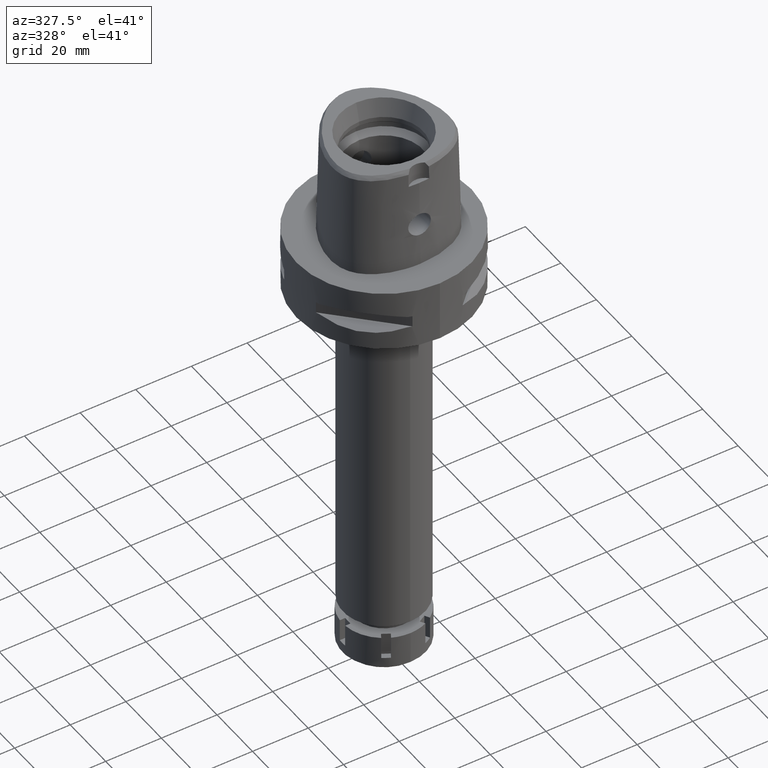
[diagram: clean part render]
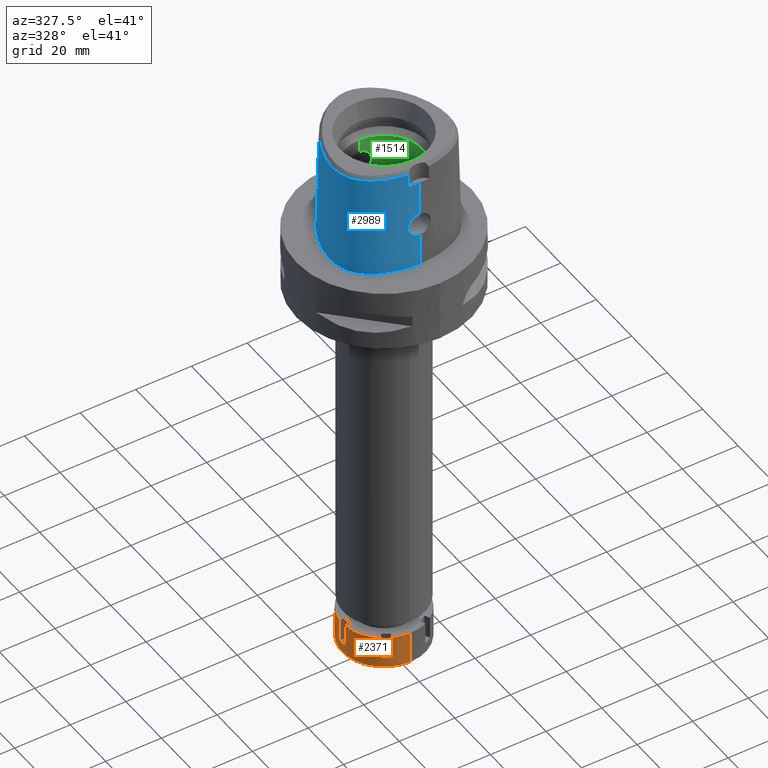
[diagram: same view with three faces highlighted in distinct colors, each labeled with its STEP entity id]
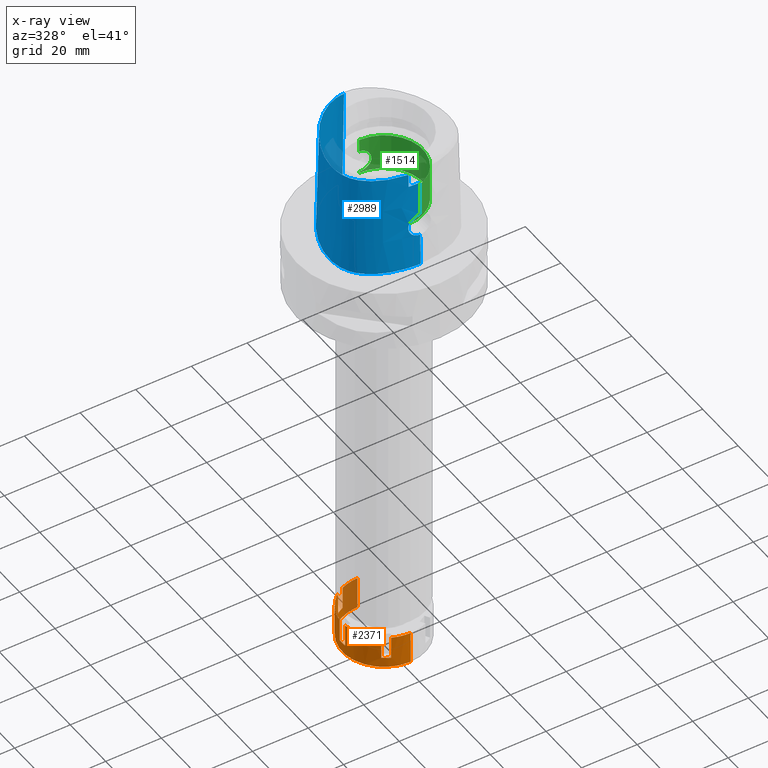
[diagram: x-ray of the same camera — body ghosted, the three highlighted faces saturated]
A machine part, auxiliary view with three faces highlighted in distinct colors.
The next image is the same camera in x-ray (body ghosted, the three faces saturated) — at least one of them is partly hidden behind the body in this view.
Their STEP definitions:

[orange] entity #2371 — the highlighted cylindrical surface (partial cylindrical patch) has radius 15 mm, axis along (0, 0, -1).
#14 = CARTESIAN_POINT ( 'NONE',  ( 0.0000000000000000000, 15.00000000000000000, -11.59999999999999964 ) ) ;
#140 = ORIENTED_EDGE ( 'NONE', *, *, #5291, .T. ) ;
#142 = AXIS2_PLACEMENT_3D ( 'NONE', #236, #4134, #3730 ) ;
#161 = VECTOR ( 'NONE', #4534, 1000.000000000000000 ) ;
#211 = CARTESIAN_POINT ( 'NONE',  ( 0.0000000000000000000, 0.0000000000000000000, -8.000000000000000000 ) ) ;
#219 = CIRCLE ( 'NONE', #1043, 15.00000000000000000 ) ;
#236 = CARTESIAN_POINT ( 'NONE',  ( 0.0000000000000000000, 0.0000000000000000000, 0.0000000000000000000 ) ) ;
#278 = DIRECTION ( 'NONE',  ( 0.0000000000000000000, 0.0000000000000000000, 1.000000000000000000 ) ) ;
#281 = DIRECTION ( 'NONE',  ( 0.0000000000000000000, 0.0000000000000000000, -1.000000000000000000 ) ) ;
#327 = DIRECTION ( 'NONE',  ( 0.0000000000000000000, 0.0000000000000000000, -1.000000000000000000 ) ) ;
#428 = VERTEX_POINT ( 'NONE', #4776 ) ;
#449 = CARTESIAN_POINT ( 'NONE',  ( 0.0000000000000000000, 15.00000000000000000, 0.0000000000000000000 ) ) ;
#519 = AXIS2_PLACEMENT_3D ( 'NONE', #744, #4176, #2150 ) ;
#543 = ORIENTED_EDGE ( 'NONE', *, *, #601, .F. ) ;
#601 = EDGE_CURVE ( 'NONE', #2330, #1311, #1136, .T. ) ;
#654 = DIRECTION ( 'NONE',  ( 0.0000000000000000000, 1.000000000000000000, 0.0000000000000000000 ) ) ;
#703 = VERTEX_POINT ( 'NONE', #2221 ) ;
#744 = CARTESIAN_POINT ( 'NONE',  ( 0.0000000000000000000, 0.0000000000000000000, 0.0000000000000000000 ) ) ;
#772 = LINE ( 'NONE', #2013, #3578 ) ;
#863 = CARTESIAN_POINT ( 'NONE',  ( -8.761443883976001601, 12.17526595470999951, -8.000000000000000000 ) ) ;
#865 = ORIENTED_EDGE ( 'NONE', *, *, #3018, .F. ) ;
#879 = AXIS2_PLACEMENT_3D ( 'NONE', #3346, #1261, #5082 ) ;
#945 = EDGE_LOOP ( 'NONE', ( #3785, #4584, #4205, #3298, #1962, #5559, #3419, #1125, #543, #4834, #865, #1788, #3936, #1186, #2461, #140 ) ) ;
#969 = CIRCLE ( 'NONE', #4122, 15.00000000000000178 ) ;
#1043 = AXIS2_PLACEMENT_3D ( 'NONE', #4496, #2336, #4010 ) ;
#1125 = ORIENTED_EDGE ( 'NONE', *, *, #3634, .T. ) ;
#1128 = LINE ( 'NONE', #5446, #5184 ) ;
#1136 = LINE ( 'NONE', #2828, #161 ) ;
#1154 = CARTESIAN_POINT ( 'NONE',  ( -6.163367672621999915, 13.67526595470999951, 0.0000000000000000000 ) ) ;
#1170 = VERTEX_POINT ( 'NONE', #5393 ) ;
#1186 = ORIENTED_EDGE ( 'NONE', *, *, #1857, .T. ) ;
#1223 = VERTEX_POINT ( 'NONE', #5054 ) ;
#1250 = CARTESIAN_POINT ( 'NONE',  ( -6.163367672623000004, -13.67526595470999951, -8.000000000000000000 ) ) ;
#1261 = DIRECTION ( 'NONE',  ( 0.0000000000000000000, 0.0000000000000000000, -1.000000000000000000 ) ) ;
#1311 = VERTEX_POINT ( 'NONE', #4686 ) ;
#1346 = CARTESIAN_POINT ( 'NONE',  ( 0.0000000000000000000, 15.00000000000000000, 0.0000000000000000000 ) ) ;
#1368 = CARTESIAN_POINT ( 'NONE',  ( 0.0000000000000000000, 0.0000000000000000000, -8.000000000000000000 ) ) ;
#1392 = CARTESIAN_POINT ( 'NONE',  ( -14.92481155659999992, -1.500000000000000000, -8.000000000000000000 ) ) ;
#1576 = LINE ( 'NONE', #1154, #1698 ) ;
#1698 = VECTOR ( 'NONE', #327, 1000.000000000000000 ) ;
#1774 = EDGE_CURVE ( 'NONE', #428, #5569, #772, .T. ) ;
#1784 = CIRCLE ( 'NONE', #519, 15.00000000000000533 ) ;
#1788 = ORIENTED_EDGE ( 'NONE', *, *, #5129, .T. ) ;
#1857 = EDGE_CURVE ( 'NONE', #4038, #703, #1784, .T. ) ;
#1858 = VERTEX_POINT ( 'NONE', #449 ) ;
#1867 = CARTESIAN_POINT ( 'NONE',  ( -14.92481155659999992, -1.500000000000000000, 0.0000000000000000000 ) ) ;
#1871 = CIRCLE ( 'NONE', #879, 14.99999999999999645 ) ;
#1949 = DIRECTION ( 'NONE',  ( -0.4108911781748959546, -0.9116843969806908143, 0.0000000000000000000 ) ) ;
#1962 = ORIENTED_EDGE ( 'NONE', *, *, #1774, .F. ) ;
#2013 = CARTESIAN_POINT ( 'NONE',  ( 0.0000000000000000000, -15.00000000000000000, 0.0000000000000000000 ) ) ;
#2020 = VERTEX_POINT ( 'NONE', #14 ) ;
#2030 = EDGE_CURVE ( 'NONE', #2330, #4428, #4576, .T. ) ;
#2077 = EDGE_CURVE ( 'NONE', #1858, #2020, #4748, .T. ) ;
#2150 = DIRECTION ( 'NONE',  ( -0.9949874371066197432, 0.1000000000000019623, 0.0000000000000000000 ) ) ;
#2221 = CARTESIAN_POINT ( 'NONE',  ( -8.761443883976001601, 12.17526595470999951, 0.0000000000000000000 ) ) ;
#2320 = CARTESIAN_POINT ( 'NONE',  ( -14.92481155659999992, 1.500000000000000000, 0.0000000000000000000 ) ) ;
#2330 = VERTEX_POINT ( 'NONE', #3507 ) ;
#2336 = DIRECTION ( 'NONE',  ( 0.0000000000000000000, 0.0000000000000000000, -1.000000000000000000 ) ) ;
#2371 = ADVANCED_FACE ( 'NONE', ( #2844 ), #4164, .T. ) ;
#2422 = EDGE_CURVE ( 'NONE', #4901, #1223, #1128, .T. ) ;
#2434 = DIRECTION ( 'NONE',  ( 0.0000000000000000000, 0.0000000000000000000, -1.000000000000000000 ) ) ;
#2461 = ORIENTED_EDGE ( 'NONE', *, *, #2589, .F. ) ;
#2513 = VECTOR ( 'NONE', #4604, 1000.000000000000000 ) ;
#2514 = EDGE_CURVE ( 'NONE', #3642, #3430, #1576, .T. ) ;
#2561 = DIRECTION ( 'NONE',  ( 0.0000000000000000000, 0.0000000000000000000, 1.000000000000000000 ) ) ;
#2571 = DIRECTION ( 'NONE',  ( 0.0000000000000000000, 0.0000000000000000000, -1.000000000000000000 ) ) ;
#2577 = CIRCLE ( 'NONE', #4197, 14.99999999999999645 ) ;
#2584 = LINE ( 'NONE', #863, #5273 ) ;
#2589 = EDGE_CURVE ( 'NONE', #3427, #703, #2584, .T. ) ;
#2624 = EDGE_CURVE ( 'NONE', #3642, #1858, #1871, .T. ) ;
#2724 = CARTESIAN_POINT ( 'NONE',  ( 0.0000000000000000000, -15.00000000000000000, -11.59999999999999964 ) ) ;
#2747 = VERTEX_POINT ( 'NONE', #5475 ) ;
#2828 = CARTESIAN_POINT ( 'NONE',  ( -8.761443883976001601, -12.17526595470999951, 0.0000000000000000000 ) ) ;
#2844 = FACE_OUTER_BOUND ( 'NONE', #945, .T. ) ;
#2918 = CARTESIAN_POINT ( 'NONE',  ( 0.0000000000000000000, 0.0000000000000000000, -8.000000000000000000 ) ) ;
#2941 = DIRECTION ( 'NONE',  ( -0.9949874371066197432, -0.1000000000000019623, 0.0000000000000000000 ) ) ;
#3018 = EDGE_CURVE ( 'NONE', #2747, #4428, #5243, .T. ) ;
#3030 = DIRECTION ( 'NONE',  ( 0.0000000000000000000, 0.0000000000000000000, -1.000000000000000000 ) ) ;
#3035 = AXIS2_PLACEMENT_3D ( 'NONE', #3438, #4698, #4332 ) ;
#3036 = CIRCLE ( 'NONE', #3488, 15.00000000000000000 ) ;
#3128 = DIRECTION ( 'NONE',  ( 0.0000000000000000000, 0.0000000000000000000, -1.000000000000000000 ) ) ;
#3130 = VECTOR ( 'NONE', #2571, 1000.000000000000000 ) ;
#3249 = CARTESIAN_POINT ( 'NONE',  ( 0.0000000000000000000, 0.0000000000000000000, -11.59999999999999964 ) ) ;
#3259 = CARTESIAN_POINT ( 'NONE',  ( -14.92481155659999992, 1.500000000000000000, 0.0000000000000000000 ) ) ;
#3290 = DIRECTION ( 'NONE',  ( 0.0000000000000000000, 0.0000000000000000000, 1.000000000000000000 ) ) ;
#3298 = ORIENTED_EDGE ( 'NONE', *, *, #3537, .T. ) ;
#3346 = CARTESIAN_POINT ( 'NONE',  ( 0.0000000000000000000, 0.0000000000000000000, 0.0000000000000000000 ) ) ;
#3419 = ORIENTED_EDGE ( 'NONE', *, *, #2422, .F. ) ;
#3427 = VERTEX_POINT ( 'NONE', #3812 ) ;
#3430 = VERTEX_POINT ( 'NONE', #3835 ) ;
#3438 = CARTESIAN_POINT ( 'NONE',  ( 0.0000000000000000000, 0.0000000000000000000, 0.0000000000000000000 ) ) ;
#3488 = AXIS2_PLACEMENT_3D ( 'NONE', #3249, #278, #654 ) ;
#3507 = CARTESIAN_POINT ( 'NONE',  ( -8.761443883976001601, -12.17526595470999951, 0.0000000000000000000 ) ) ;
#3537 = EDGE_CURVE ( 'NONE', #2020, #5569, #3036, .T. ) ;
#3578 = VECTOR ( 'NONE', #4202, 1000.000000000000000 ) ;
#3605 = LINE ( 'NONE', #2320, #4308 ) ;
#3634 = EDGE_CURVE ( 'NONE', #4901, #1311, #969, .T. ) ;
#3642 = VERTEX_POINT ( 'NONE', #4145 ) ;
#3730 = DIRECTION ( 'NONE',  ( 0.0000000000000000000, -1.000000000000000000, 0.0000000000000000000 ) ) ;
#3785 = ORIENTED_EDGE ( 'NONE', *, *, #2514, .F. ) ;
#3812 = CARTESIAN_POINT ( 'NONE',  ( -8.761443883976001601, 12.17526595470999951, -8.000000000000000000 ) ) ;
#3835 = CARTESIAN_POINT ( 'NONE',  ( -6.163367672621999915, 13.67526595470999951, -8.000000000000000000 ) ) ;
#3894 = DIRECTION ( 'NONE',  ( -0.5840962589317860720, 0.8116843969806811776, 0.0000000000000000000 ) ) ;
#3936 = ORIENTED_EDGE ( 'NONE', *, *, #4394, .F. ) ;
#4010 = DIRECTION ( 'NONE',  ( 0.0000000000000000000, -1.000000000000000000, 0.0000000000000000000 ) ) ;
#4038 = VERTEX_POINT ( 'NONE', #3259 ) ;
#4122 = AXIS2_PLACEMENT_3D ( 'NONE', #211, #2434, #1949 ) ;
#4134 = DIRECTION ( 'NONE',  ( 0.0000000000000000000, 0.0000000000000000000, -1.000000000000000000 ) ) ;
#4145 = CARTESIAN_POINT ( 'NONE',  ( -6.163367672621999915, 13.67526595470999951, 0.0000000000000000000 ) ) ;
#4164 = CYLINDRICAL_SURFACE ( 'NONE', #142, 15.00000000000000000 ) ;
#4176 = DIRECTION ( 'NONE',  ( 0.0000000000000000000, 0.0000000000000000000, -1.000000000000000000 ) ) ;
#4197 = AXIS2_PLACEMENT_3D ( 'NONE', #1368, #3030, #3894 ) ;
#4202 = DIRECTION ( 'NONE',  ( 0.0000000000000000000, 0.0000000000000000000, -1.000000000000000000 ) ) ;
#4205 = ORIENTED_EDGE ( 'NONE', *, *, #2077, .T. ) ;
#4308 = VECTOR ( 'NONE', #3128, 1000.000000000000000 ) ;
#4332 = DIRECTION ( 'NONE',  ( -0.5840962589317197917, -0.8116843969807286951, 0.0000000000000000000 ) ) ;
#4394 = EDGE_CURVE ( 'NONE', #4038, #1170, #3605, .T. ) ;
#4428 = VERTEX_POINT ( 'NONE', #1867 ) ;
#4452 = AXIS2_PLACEMENT_3D ( 'NONE', #2918, #281, #2941 ) ;
#4496 = CARTESIAN_POINT ( 'NONE',  ( 0.0000000000000000000, 0.0000000000000000000, 0.0000000000000000000 ) ) ;
#4534 = DIRECTION ( 'NONE',  ( 0.0000000000000000000, 0.0000000000000000000, -1.000000000000000000 ) ) ;
#4576 = CIRCLE ( 'NONE', #3035, 15.00000000000000355 ) ;
#4584 = ORIENTED_EDGE ( 'NONE', *, *, #2624, .T. ) ;
#4604 = DIRECTION ( 'NONE',  ( 0.0000000000000000000, 0.0000000000000000000, 1.000000000000000000 ) ) ;
#4686 = CARTESIAN_POINT ( 'NONE',  ( -8.761443883976001601, -12.17526595470999951, -8.000000000000000000 ) ) ;
#4698 = DIRECTION ( 'NONE',  ( 0.0000000000000000000, 0.0000000000000000000, -1.000000000000000000 ) ) ;
#4748 = LINE ( 'NONE', #1346, #3130 ) ;
#4776 = CARTESIAN_POINT ( 'NONE',  ( 0.0000000000000000000, -15.00000000000000000, 0.0000000000000000000 ) ) ;
#4834 = ORIENTED_EDGE ( 'NONE', *, *, #2030, .T. ) ;
#4901 = VERTEX_POINT ( 'NONE', #1250 ) ;
#5054 = CARTESIAN_POINT ( 'NONE',  ( -6.163367672623000004, -13.67526595470999951, 0.0000000000000000000 ) ) ;
#5082 = DIRECTION ( 'NONE',  ( -0.4108911781748131320, 0.9116843969807282289, 0.0000000000000000000 ) ) ;
#5086 = CIRCLE ( 'NONE', #4452, 15.00000000000000533 ) ;
#5129 = EDGE_CURVE ( 'NONE', #2747, #1170, #5086, .T. ) ;
#5184 = VECTOR ( 'NONE', #3290, 1000.000000000000000 ) ;
#5243 = LINE ( 'NONE', #1392, #2513 ) ;
#5273 = VECTOR ( 'NONE', #2561, 1000.000000000000000 ) ;
#5291 = EDGE_CURVE ( 'NONE', #3427, #3430, #2577, .T. ) ;
#5393 = CARTESIAN_POINT ( 'NONE',  ( -14.92481155659999992, 1.500000000000000000, -8.000000000000000000 ) ) ;
#5422 = EDGE_CURVE ( 'NONE', #428, #1223, #219, .T. ) ;
#5446 = CARTESIAN_POINT ( 'NONE',  ( -6.163367672623000004, -13.67526595470999951, -8.000000000000000000 ) ) ;
#5475 = CARTESIAN_POINT ( 'NONE',  ( -14.92481155659999992, -1.500000000000000000, -8.000000000000000000 ) ) ;
#5559 = ORIENTED_EDGE ( 'NONE', *, *, #5422, .T. ) ;
#5569 = VERTEX_POINT ( 'NONE', #2724 ) ;

[blue] entity #2989 — the highlighted face is a freeform B-spline surface patch.
#10 = EDGE_CURVE ( 'NONE', #1518, #5390, #285, .T. ) ;
#32 = CARTESIAN_POINT ( 'NONE',  ( -14.68244496996000059, -17.23001772813000088, -0.7304375801132999557 ) ) ;
#85 = CARTESIAN_POINT ( 'NONE',  ( -17.88993660677000008, -13.52675025295000033, 37.25231658578000093 ) ) ;
#100 = CARTESIAN_POINT ( 'NONE',  ( -21.14970188363416526, -6.717195958887261398, 36.52186244848003582 ) ) ;
#111 = CARTESIAN_POINT ( 'NONE',  ( -1.853278696390000091, -20.08023933727000099, 24.59139853047999935 ) ) ;
#137 = CARTESIAN_POINT ( 'NONE',  ( 0.4479792504542000064, -20.05810161157999971, 24.59139853047999935 ) ) ;
#162 = CARTESIAN_POINT ( 'NONE',  ( -3.952973241254576386, -20.08624587561835639, 14.60894738504896750 ) ) ;
#164 = CARTESIAN_POINT ( 'NONE',  ( -20.16779742985000112, 4.447573677391999603, 24.59139853047999935 ) ) ;
#182 = CARTESIAN_POINT ( 'NONE',  ( 2.041042029990999821E-08, -19.88004246002000031, 31.80000004972000127 ) ) ;
#191 = CARTESIAN_POINT ( 'NONE',  ( -2.945056662729404806, -20.23335974770784418, 12.71951979027732449 ) ) ;
#194 = CARTESIAN_POINT ( 'NONE',  ( -13.93560872906999926, 15.24203796931000099, 24.59139853047999935 ) ) ;
#198 = CARTESIAN_POINT ( 'NONE',  ( 3.796788964451000297E-11, 23.47499999999000053, 6.972200594645999482E-14 ) ) ;
#221 = CARTESIAN_POINT ( 'NONE',  ( -3.765619531577793833, -20.12201689240461988, 14.00897413268198299 ) ) ;
#222 = CARTESIAN_POINT ( 'NONE',  ( -0.6149727125723999377, 23.51889464678999886, -0.7304375801132999557 ) ) ;
#223 = B_SPLINE_CURVE_WITH_KNOTS ( 'NONE', 3,
 ( #5394, #1516, #730, #4553 ),
 .UNSPECIFIED., .F., .F.,
 ( 4, 4 ),
 ( 0.0000000000000000000, 1.000000000000000000 ),
 .UNSPECIFIED. ) ;
#254 = CARTESIAN_POINT ( 'NONE',  ( -3.862670319763410909, -20.10459525844651196, 14.28058037401624780 ) ) ;
#277 = VERTEX_POINT ( 'NONE', #4362 ) ;
#284 = CARTESIAN_POINT ( 'NONE',  ( -3.623131309220052998, -20.05420346129743336, 17.31085075801793138 ) ) ;
#285 = B_SPLINE_CURVE_WITH_KNOTS ( 'NONE', 3,
 ( #1485, #4909, #1969, #2951, #3396, #4149, #905, #1803, #473, #1377, #2200, #3091, #1337, #4813, #3555, #971, #3140, #1878, #4435, #678, #2006, #2505, #355, #1538, #634, #3995, #3163, #632, #5533, #2769, #3636, #4963, #3721, #4931, #284, #4989, #3223, #1115, #4541, #2834, #661, #4895, #1929, #4449, #2321, #1142, #3279, #2807, #5348, #2862, #4481, #1048, #1502, #162, #3254, #254, #689, #4569, #221, #2017, #4062, #2412, #5435, #4120, #2382, #4512, #630, #3695, #1956, #4027, #1565, #2738, #4092, #1593, #2355, #4151, #191, #3666, #1086, #1900, #1990, #3606, #5322, #1536, #3309, #5380, #1019, #716, #592, #5408, #1473, #2441, #3191, #4180, #2496, #317 ),
 .UNSPECIFIED., .F., .F.,
 ( 4, 2, 2, 1, 1, 1, 2, 2, 2, 2, 1, 2, 2, 2, 1, 1, 1, 2, 2, 2, 2, 2, 1, 1, 2, 2, 2, 2, 1, 2, 2, 2, 2, 1, 1, 1, 2, 2, 2, 2, 1, 1, 2, 2, 2, 1, 1, 1, 2, 2, 2, 2, 2, 1, 1, 2, 2, 4 ),
 ( 0.0000000000000000000, 0.06250000000002212119, 0.09375000000003318179, 0.1093750000000387190, 0.1171875000000413697, 0.1210937500000427020, 0.1230468750000434097, 0.1250000000000441036, 0.1562500000000529854, 0.1718750000000575928, 0.1796875000000600631, 0.1835937500000613121, 0.1875000000000625611, 0.2187500000000733302, 0.2343750000000787148, 0.2421875000000813238, 0.2460937500000826006, 0.2480468750000835165, 0.2500000000000844325, 0.3125000000001205702, 0.3437500000001386669, 0.3593750000001476597, 0.3671875000001521561, 0.3710937500001539879, 0.3730468750001545430, 0.3750000000001550426, 0.4375000000001507683, 0.4687500000001483258, 0.4843750000001466605, 0.4921875000001454392, 0.5000000000001442180, 0.5625000000001328937, 0.5937500000001270095, 0.6093750000001241229, 0.6171875000001224576, 0.6210937500001215694, 0.6230468750001211253, 0.6250000000001206812, 0.6562500000001088019, 0.6718750000001029177, 0.6796875000001001421, 0.6835937500000986988, 0.6855468750000982547, 0.6875000000000976996, 0.7187500000000851541, 0.7343750000000788258, 0.7421875000000758282, 0.7460937500000743849, 0.7480468750000736078, 0.7500000000000728306, 0.8125000000000538458, 0.8437500000000444089, 0.8593750000000397460, 0.8671875000000374145, 0.8710937500000363043, 0.8730468750000357492, 0.8750000000000351941, 1.000000000000000000 ),
 .UNSPECIFIED. ) ;
#286 = CARTESIAN_POINT ( 'NONE',  ( -10.34823243681000093, 18.70095506127999840, 24.59139853047999935 ) ) ;
#317 = CARTESIAN_POINT ( 'NONE',  ( -6.936546298697000348E-13, -20.38876923348000147, 11.44999999999999929 ) ) ;
#318 = CARTESIAN_POINT ( 'NONE',  ( -21.05621916127000048, -0.4440251502746000445, 37.25231658578000093 ) ) ;
#340 = CARTESIAN_POINT ( 'NONE',  ( -14.67337966171797170, -17.21410159326269707, -1.411724549380769661E-06 ) ) ;
#355 = CARTESIAN_POINT ( 'NONE',  ( -2.467031803648024990, -20.12045714792764173, 18.71463355124486938 ) ) ;
#453 = CARTESIAN_POINT ( 'NONE',  ( -10.91891098964691764, -18.03046406390545187, 36.52186244848003582 ) ) ;
#462 = CARTESIAN_POINT ( 'NONE',  ( 0.6718639848707000928, -20.05378898326000225, 24.59139853047999935 ) ) ;
#473 = CARTESIAN_POINT ( 'NONE',  ( -1.492692049813160171, -20.16161490772261544, 19.26495844333544483 ) ) ;
#546 = CARTESIAN_POINT ( 'NONE',  ( -20.36546124296999949, -11.75800453082999830, -0.7304375801132999557 ) ) ;
#558 = CARTESIAN_POINT ( 'NONE',  ( -6.936546298697000348E-13, -20.38876923348000147, 11.44999999999999929 ) ) ;
#574 = CARTESIAN_POINT ( 'NONE',  ( -1.886862292100000005, -20.71358859662999663, -0.7304375801132999557 ) ) ;
#592 = CARTESIAN_POINT ( 'NONE',  ( -1.638762875752830306, -20.34199391072979424, 11.79616403447270478 ) ) ;
#628 = CARTESIAN_POINT ( 'NONE',  ( -16.39211280191845432, -14.95758113318752258, 36.52186244848003582 ) ) ;
#630 = CARTESIAN_POINT ( 'NONE',  ( -3.467735300022843248, -20.16817589423921930, 13.40749538292403820 ) ) ;
#632 = CARTESIAN_POINT ( 'NONE',  ( -2.840925263430273962, -20.10000581476814574, 18.38647058799723055 ) ) ;
#634 = CARTESIAN_POINT ( 'NONE',  ( -2.696297221292836443, -20.10826766487160100, 18.52327467490286494 ) ) ;
#656 = CARTESIAN_POINT ( 'NONE',  ( -3.736722311398999796, -19.67781602443999844, 31.80000000000000071 ) ) ;
#661 = CARTESIAN_POINT ( 'NONE',  ( -3.738100423595469568, -20.04830683710418171, 17.05857473067057484 ) ) ;
#666 = CARTESIAN_POINT ( 'NONE',  ( -22.24453911394987671, -4.100468749792255174, -1.411724549380769661E-06 ) ) ;
#678 = CARTESIAN_POINT ( 'NONE',  ( -2.218905924399033669, -20.13252692328817517, 18.88811097025615737 ) ) ;
#689 = CARTESIAN_POINT ( 'NONE',  ( -3.830582834634972400, -20.11061303524501653, 14.18178188203387258 ) ) ;
#690 = CARTESIAN_POINT ( 'NONE',  ( -14.42198651810999976, 15.65278600090999994, -0.7304375801132999557 ) ) ;
#716 = CARTESIAN_POINT ( 'NONE',  ( -1.678547993835078467, -20.33965717508442594, 11.81410234512353341 ) ) ;
#730 = CARTESIAN_POINT ( 'NONE',  ( 6.841552641078787438E-09, -20.08420636276018101, 23.63333344114130341 ) ) ;
#748 = CARTESIAN_POINT ( 'NONE',  ( -21.44619304737999954, -6.759806567291000157, 24.59139853047999935 ) ) ;
#774 = VERTEX_POINT ( 'NONE', #1432 ) ;
#801 = CARTESIAN_POINT ( 'NONE',  ( -6.341471025482558588, -20.29812503493905851, -1.411724549380769661E-06 ) ) ;
#875 = VECTOR ( 'NONE', #1590, 1000.000000000000114 ) ;
#905 = CARTESIAN_POINT ( 'NONE',  ( -1.320866626977608371, -20.16697411650878635, 19.32965971007391914 ) ) ;
#919 = CARTESIAN_POINT ( 'NONE',  ( -1.836486898534999801, -19.76356470757999872, 37.25231658578000093 ) ) ;
#931 = ORIENTED_EDGE ( 'NONE', *, *, #1560, .F. ) ;
#971 = CARTESIAN_POINT ( 'NONE',  ( -2.004946554111012080, -20.14219031904399770, 19.01961090508990893 ) ) ;
#973 = CARTESIAN_POINT ( 'NONE',  ( -10.91263711304000061, -18.01320810246999926, 37.25231658578000093 ) ) ;
#998 = VERTEX_POINT ( 'NONE', #1709 ) ;
#1001 = ORIENTED_EDGE ( 'NONE', *, *, #4370, .T. ) ;
#1003 = CARTESIAN_POINT ( 'NONE',  ( -19.40779772695999839, -12.64961930227000053, 11.93048047517999954 ) ) ;
#1019 = CARTESIAN_POINT ( 'NONE',  ( -1.758573507195615004, -20.33483936207382570, 11.85124969624994939 ) ) ;
#1048 = CARTESIAN_POINT ( 'NONE',  ( -4.049829286978744669, -20.05866643351854961, 15.25290641861667318 ) ) ;
#1054 = CARTESIAN_POINT ( 'NONE',  ( -19.64947368723442622, -12.82525392703348643, -1.411724549380769661E-06 ) ) ;
#1080 = LINE ( 'NONE', #558, #4128 ) ;
#1084 = CARTESIAN_POINT ( 'NONE',  ( -0.7901461696972958970, 22.56201478746107369, 36.52186244848003582 ) ) ;
#1086 = CARTESIAN_POINT ( 'NONE',  ( -2.887298006306363352, -20.23974971339213269, 12.65991565105024108 ) ) ;
#1087 = CARTESIAN_POINT ( 'NONE',  ( 0.7042335302682000142, 23.15549824660000056, 11.93048047517999954 ) ) ;
#1115 = CARTESIAN_POINT ( 'NONE',  ( -3.704547339788379468, -20.04994126119367692, 17.13715336648374432 ) ) ;
#1117 = CARTESIAN_POINT ( 'NONE',  ( -10.55288408668000066, 18.94467590843999716, 11.93048047517999954 ) ) ;
#1142 = CARTESIAN_POINT ( 'NONE',  ( -4.019667317129694162, -20.04319797611773879, 16.01149687264317478 ) ) ;
#1143 = CARTESIAN_POINT ( 'NONE',  ( 0.4441907078628999916, 22.53710793154999692, 37.25231658578000093 ) ) ;
#1175 = CARTESIAN_POINT ( 'NONE',  ( -17.25769860231999786, 9.963736585017000991, 37.25231658578000093 ) ) ;
#1278 = B_SPLINE_CURVE_WITH_KNOTS ( 'NONE', 3,
 ( #5552, #3397, #2109, #2056 ),
 .UNSPECIFIED., .F., .F.,
 ( 4, 4 ),
 ( 0.0000000000000000000, 1.000000000000000000 ),
 .UNSPECIFIED. ) ;
#1337 = CARTESIAN_POINT ( 'NONE',  ( -1.656557867873093004, -20.15608475847809089, 19.19752105505947526 ) ) ;
#1339 = CARTESIAN_POINT ( 'NONE',  ( -19.54161185803000222, -11.28235486485999850, 37.25231658578000093 ) ) ;
#1364 = CARTESIAN_POINT ( 'NONE',  ( 0.4520368087163999515, -20.37458464694999805, 11.93048047517999954 ) ) ;
#1377 = CARTESIAN_POINT ( 'NONE',  ( -1.517187227779240422, -20.16080388944384438, 19.25509261511315984 ) ) ;
#1388 = CARTESIAN_POINT ( 'NONE',  ( -18.56841067713164861, -14.16937990716558282, -1.411724549380769661E-06 ) ) ;
#1407 = DIRECTION ( 'NONE',  ( -4.234890661638874812E-13, -0.02499051295389925070, -0.9996876883618708298 ) ) ;
#1424 = CARTESIAN_POINT ( 'NONE',  ( -19.66427014424999697, -12.83600704526999969, -0.7304375801132999557 ) ) ;
#1432 = CARTESIAN_POINT ( 'NONE',  ( -5.544119294011000731E-12, -20.67499999999999716, 7.264559324463998182E-14 ) ) ;
#1446 = CARTESIAN_POINT ( 'NONE',  ( -10.15538788053458141, 18.47129535093940333, 36.52186244848003582 ) ) ;
#1453 = CARTESIAN_POINT ( 'NONE',  ( -10.74572893341513868, 19.17433596467954260, -1.411724549380769661E-06 ) ) ;
#1457 = CARTESIAN_POINT ( 'NONE',  ( -1.870070494244999937, -20.39691396694999881, 11.93048047517999954 ) ) ;
#1472 = CARTESIAN_POINT ( 'NONE',  ( -19.55745547455975952, -11.29150218116314441, 36.52186244848003582 ) ) ;
#1473 = CARTESIAN_POINT ( 'NONE',  ( -1.573175409423928084, -20.34568097891646232, 11.76802073981913566 ) ) ;
#1475 = CARTESIAN_POINT ( 'NONE',  ( -0.5985508206590000047, 23.20171281893999904, 11.93048047517999954 ) ) ;
#1485 = CARTESIAN_POINT ( 'NONE',  ( 0.0000000000000000000, -20.18628283968999781, 19.55000000000000071 ) ) ;
#1502 = CARTESIAN_POINT ( 'NONE',  ( -4.027507123326817151, -20.06787434564717643, 14.99842726719356989 ) ) ;
#1505 = CARTESIAN_POINT ( 'NONE',  ( -20.76670354678999786, 4.663413653146999849, -0.7304375801132999557 ) ) ;
#1516 = CARTESIAN_POINT ( 'NONE',  ( 6.821577918709970238E-09, -19.98212988583128791, 27.71666688228296138 ) ) ;
#1518 = VERTEX_POINT ( 'NONE', #3541 ) ;
#1536 = CARTESIAN_POINT ( 'NONE',  ( -2.086662004806969062, -20.31268127563440018, 12.02638839297750906 ) ) ;
#1537 = CARTESIAN_POINT ( 'NONE',  ( -7.420053160108999180, 21.05635749105999821, 11.93048047517999954 ) ) ;
#1538 = CARTESIAN_POINT ( 'NONE',  ( -2.620910454321375482, -20.11234871000621283, 18.58832188861181933 ) ) ;
#1549 = VERTEX_POINT ( 'NONE', #656 ) ;
#1560 = EDGE_CURVE ( 'NONE', #5390, #774, #1080, .T. ) ;
#1565 = CARTESIAN_POINT ( 'NONE',  ( -3.378917219879157052, -20.18042296661779034, 13.26717508011272351 ) ) ;
#1566 = CARTESIAN_POINT ( 'NONE',  ( -2.568271205268000124, 23.31126238145999707, -0.7304375801132999557 ) ) ;
#1590 = DIRECTION ( 'NONE',  ( 1.535577709270960426E-12, 0.02499051290971940689, -0.9996876883629751687 ) ) ;
#1593 = CARTESIAN_POINT ( 'NONE',  ( -3.215526995341254857, -20.20173576183445618, 13.03412874362212648 ) ) ;
#1594 = CARTESIAN_POINT ( 'NONE',  ( -2.503210914547999710, 22.99958943620999818, 11.93048047517999954 ) ) ;
#1626 = CARTESIAN_POINT ( 'NONE',  ( -21.13154892673999896, -6.714587083371999832, 37.25231658578000093 ) ) ;
#1709 = CARTESIAN_POINT ( 'NONE',  ( -3.637738201363999835, -19.56971413236999879, 36.52186244848000030 ) ) ;
#1766 = CARTESIAN_POINT ( 'NONE',  ( -14.52531265673999883, -16.95413752389999829, 11.93048047517999954 ) ) ;
#1794 = CARTESIAN_POINT ( 'NONE',  ( -16.97022730955000114, -15.69280482917999997, -0.7304375801132999557 ) ) ;
#1803 = CARTESIAN_POINT ( 'NONE',  ( -1.435479731735231690, -20.16346186668282670, 19.28735383016423910 ) ) ;
#1836 = CARTESIAN_POINT ( 'NONE',  ( -2.376843896515581811, 22.39422508473964513, 36.52186244848003582 ) ) ;
#1847 = CARTESIAN_POINT ( 'NONE',  ( -20.65947762287999723, -8.729764394255999704, 37.25231658578000093 ) ) ;
#1878 = CARTESIAN_POINT ( 'NONE',  ( -2.141741549223354468, -20.13611517949175322, 18.93769700922612742 ) ) ;
#1880 = CARTESIAN_POINT ( 'NONE',  ( -18.58171406405999804, -14.18198046378999955, -0.7304375801132999557 ) ) ;
#1900 = CARTESIAN_POINT ( 'NONE',  ( -2.875633270581516854, -20.24102979138327285, 12.64810551045542120 ) ) ;
#1928 = CARTESIAN_POINT ( 'NONE',  ( -19.88562090098477242, 4.345879983792070966, 36.52186244848003582 ) ) ;
#1929 = CARTESIAN_POINT ( 'NONE',  ( -3.848435446465738430, -20.04310701875522227, 16.79138261316987268 ) ) ;
#1931 = CARTESIAN_POINT ( 'NONE',  ( -17.53318586189000072, 10.12278934697000032, 24.59139853047999935 ) ) ;
#1935 = CARTESIAN_POINT ( 'NONE',  ( -0.8548392448069198624, 23.47500003529131263, -1.411724549380769661E-06 ) ) ;
#1956 = CARTESIAN_POINT ( 'NONE',  ( -3.404642689838068392, -20.17693293396791177, 13.30648216238983395 ) ) ;
#1957 = CARTESIAN_POINT ( 'NONE',  ( -2.373090333108999861, 22.37624354569999952, 37.25231658578000093 ) ) ;
#1969 = CARTESIAN_POINT ( 'NONE',  ( -0.5041357073049609339, -20.18406821911007754, 19.52723308754438492 ) ) ;
#1990 = CARTESIAN_POINT ( 'NONE',  ( -2.870676439667334989, -20.24157259641100381, 12.64311214024310814 ) ) ;
#1991 = CARTESIAN_POINT ( 'NONE',  ( -0.5657070368320999965, 22.56734916323999940, 37.25231658578000093 ) ) ;
#2006 = CARTESIAN_POINT ( 'NONE',  ( -2.236153415287450930, -20.13171160814247784, 18.87674297724549888 ) ) ;
#2017 = CARTESIAN_POINT ( 'NONE',  ( -3.755699594869521096, -20.12370835398187907, 13.98431559339678287 ) ) ;
#2018 = CARTESIAN_POINT ( 'NONE',  ( -14.17879762358999862, 15.44741198510999958, 11.93048047517999954 ) ) ;
#2048 = CARTESIAN_POINT ( 'NONE',  ( -21.76083716800999923, -6.805026051211000571, 11.93048047517999954 ) ) ;
#2056 = CARTESIAN_POINT ( 'NONE',  ( -3.736722311398999796, -19.67781602443999844, 31.80000000000000071 ) ) ;
#2109 = CARTESIAN_POINT ( 'NONE',  ( -3.704239276368590961, -19.64128040965313460, 33.37395414949332917 ) ) ;
#2181 = CARTESIAN_POINT ( 'NONE',  ( -14.22011356156086137, -16.41829364186760642, 36.52186244848003582 ) ) ;
#2200 = CARTESIAN_POINT ( 'NONE',  ( -1.533511455574234406, -20.16025888516049491, 19.24845571506939379 ) ) ;
#2219 = EDGE_LOOP ( 'NONE', ( #931, #2560, #4892, #4629, #4620, #1001, #3321, #3732 ) ) ;
#2245 = CARTESIAN_POINT ( 'NONE',  ( -6.175998610010000611, -19.37631799261999888, 37.25231658578000093 ) ) ;
#2261 = CARTESIAN_POINT ( 'NONE',  ( -18.90964971338208755, -12.28759719904589254, 36.52186244848003582 ) ) ;
#2272 = CARTESIAN_POINT ( 'NONE',  ( -6.288476587506999671, -20.00290576233999928, 11.93048047517999954 ) ) ;
#2301 = CARTESIAN_POINT ( 'NONE',  ( 0.4560943669786999832, -20.69106768230999904, -0.7304375801132999557 ) ) ;
#2304 = CARTESIAN_POINT ( 'NONE',  ( -6.936546298697000348E-13, -20.38876923348000147, 11.44999999999999929 ) ) ;
#2321 = CARTESIAN_POINT ( 'NONE',  ( -4.001073718364238196, -20.04211669945547314, 16.14143145178027439 ) ) ;
#2323 = CARTESIAN_POINT ( 'NONE',  ( -10.75753573655000039, 19.18839675560999680, -0.7304375801132999557 ) ) ;
#2327 = CARTESIAN_POINT ( 'NONE',  ( -5.098437030456695496, 22.52602542353450232, -1.411724549380769661E-06 ) ) ;
#2355 = CARTESIAN_POINT ( 'NONE',  ( -3.089195988020667638, -20.21685458561810833, 12.88011891962693412 ) ) ;
#2382 = CARTESIAN_POINT ( 'NONE',  ( -3.555378551724423186, -20.15552821991712662, 13.55933742265570707 ) ) ;
#2388 = CARTESIAN_POINT ( 'NONE',  ( -20.34961801618811705, -11.74885743954756911, -1.411724549380769661E-06 ) ) ;
#2402 = VERTEX_POINT ( 'NONE', #3204 ) ;
#2410 = EDGE_CURVE ( 'NONE', #2402, #1518, #223, .T. ) ;
#2412 = CARTESIAN_POINT ( 'NONE',  ( -3.744959948694635887, -20.12552913461122017, 13.95798024830229700 ) ) ;
#2413 = CARTESIAN_POINT ( 'NONE',  ( -7.099337802534000375, 20.50831395167999815, 37.25231658578000093 ) ) ;
#2441 = CARTESIAN_POINT ( 'NONE',  ( -1.560125442581096644, -20.34639974841498145, 11.76254649919930273 ) ) ;
#2470 = CARTESIAN_POINT ( 'NONE',  ( -22.26285556288999956, -4.100361500063000264, -0.7304375801132999557 ) ) ;
#2496 = CARTESIAN_POINT ( 'NONE',  ( -0.5052764329538973476, -20.38876923347999437, 11.44999999999999929 ) ) ;
#2505 = CARTESIAN_POINT ( 'NONE',  ( -2.360303563075752287, -20.12579123674484549, 18.79379445004653704 ) ) ;
#2560 = ORIENTED_EDGE ( 'NONE', *, *, #10, .F. ) ;
#2605 = CARTESIAN_POINT ( 'NONE',  ( -4.467522189395755738, -19.48130287050802423, 36.52186244848003582 ) ) ;
#2616 = CARTESIAN_POINT ( 'NONE',  ( 0.6840430853087000607, -20.68668154738000098, -0.7304375801132999557 ) ) ;
#2642 = CARTESIAN_POINT ( 'NONE',  ( -20.07948507434999996, -10.22500070737000044, 37.25231658578000093 ) ) ;
#2654 = EDGE_CURVE ( 'NONE', #998, #1549, #1278, .T. ) ;
#2696 = CARTESIAN_POINT ( 'NONE',  ( -6.344715576255000045, -20.31619964721000215, -0.7304375801132999557 ) ) ;
#2722 = CARTESIAN_POINT ( 'NONE',  ( -6.232237598758000097, -19.68961187747999730, 24.59139853047999935 ) ) ;
#2738 = CARTESIAN_POINT ( 'NONE',  ( -3.373031804187258675, -20.18121639258753675, 13.25829856262887141 ) ) ;
#2745 = CARTESIAN_POINT ( 'NONE',  ( -20.74942744219112001, 4.657187512033544863, -1.411724549380769661E-06 ) ) ;
#2768 = CARTESIAN_POINT ( 'NONE',  ( -21.07430010672997511, -0.4408303445192968684, 36.52186244848003582 ) ) ;
#2769 = CARTESIAN_POINT ( 'NONE',  ( -2.857701613780251559, -20.09902039673188767, 18.36986640665419657 ) ) ;
#2806 = CARTESIAN_POINT ( 'NONE',  ( -7.108589416785580539, 20.52412325828052175, 36.52186244848003582 ) ) ;
#2807 = CARTESIAN_POINT ( 'NONE',  ( -4.044860985360218208, -20.04749655353606741, 15.72095293212211153 ) ) ;
#2834 = CARTESIAN_POINT ( 'NONE',  ( -3.732637044261017945, -20.04856818254156892, 17.07161403142752576 ) ) ;
#2862 = CARTESIAN_POINT ( 'NONE',  ( -4.049668354669065273, -20.05093596202167916, 15.56089917110747933 ) ) ;
#2863 = CARTESIAN_POINT ( 'NONE',  ( 0.4823619556323999746, 23.48603817965999951, -0.7304375801132999557 ) ) ;
#2895 = CARTESIAN_POINT ( 'NONE',  ( -21.94536983432000099, -4.102220498962999784, 11.93048047517999954 ) ) ;
#2925 = CARTESIAN_POINT ( 'NONE',  ( 3.796788964451000297E-11, 23.47499999999000053, 6.972200594645999482E-14 ) ) ;
#2951 = CARTESIAN_POINT ( 'NONE',  ( -0.8945856573212735974, -20.17742435737030604, 19.45218689966872816 ) ) ;
#2989 = ADVANCED_FACE ( 'NONE', ( #5409 ), #5484, .T. ) ;
#3054 = CARTESIAN_POINT ( 'NONE',  ( -19.81622831968000042, -11.44090475351999991, 24.59139853047999935 ) ) ;
#3081 = CARTESIAN_POINT ( 'NONE',  ( -20.09084478132999863, -11.59945464217000044, 11.93048047517999954 ) ) ;
#3091 = CARTESIAN_POINT ( 'NONE',  ( -1.543155906918510123, -20.15993380737172558, 19.24449221917354080 ) ) ;
#3109 = CARTESIAN_POINT ( 'NONE',  ( -14.36818034352999973, -16.67825731968000014, 24.59139853047999935 ) ) ;
#3140 = CARTESIAN_POINT ( 'NONE',  ( -2.095920934921586376, -20.13817625620768581, 18.96566852664457414 ) ) ;
#3142 = CARTESIAN_POINT ( 'NONE',  ( -19.15132530965999891, -12.46323155928000048, 24.59139853047999935 ) ) ;
#3163 = CARTESIAN_POINT ( 'NONE',  ( -2.823171496021847471, -20.10104368072842007, 18.40390846381722767 ) ) ;
#3167 = CARTESIAN_POINT ( 'NONE',  ( -18.06826691598368129, 10.43171876774247764, -1.411724549380769661E-06 ) ) ;
#3172 = CARTESIAN_POINT ( 'NONE',  ( -14.21104803030999975, -16.40237711546000199, 37.25231658578000093 ) ) ;
#3191 = CARTESIAN_POINT ( 'NONE',  ( -1.555094416681274572, -20.34667554096305153, 11.76044708272180017 ) ) ;
#3204 = CARTESIAN_POINT ( 'NONE',  ( 2.041042029990999821E-08, -19.88004246002000031, 31.80000004972000127 ) ) ;
#3223 = CARTESIAN_POINT ( 'NONE',  ( -3.686640039273354486, -20.05085371969658681, 17.17691650729989306 ) ) ;
#3224 = CARTESIAN_POINT ( 'NONE',  ( -21.68301106274999768, -0.3332743945324000423, 11.93048047517999954 ) ) ;
#3228 = CARTESIAN_POINT ( 'NONE',  ( -21.97832651281482441, -0.2810937438255229348, -1.411724549380769661E-06 ) ) ;
#3254 = CARTESIAN_POINT ( 'NONE',  ( -3.921294970892715614, -20.09312966257179056, 14.47785977238264898 ) ) ;
#3255 = CARTESIAN_POINT ( 'NONE',  ( -4.750826224766999673, 21.65775806870999887, 37.25231658578000093 ) ) ;
#3279 = CARTESIAN_POINT ( 'NONE',  ( -4.038047189180182350, -20.04588600821298172, 15.81762949443514188 ) ) ;
#3281 = CARTESIAN_POINT ( 'NONE',  ( -7.580410838897000403, 21.33037926075000001, -0.7304375801132999557 ) ) ;
#3309 = CARTESIAN_POINT ( 'NONE',  ( -1.975847471377050857, -20.32064467132695285, 11.96254614165555985 ) ) ;
#3310 = CARTESIAN_POINT ( 'NONE',  ( -18.08416038101000112, 10.44089487089000023, -0.7304375801132999557 ) ) ;
#3321 = ORIENTED_EDGE ( 'NONE', *, *, #5079, .T. ) ;
#3338 = CARTESIAN_POINT ( 'NONE',  ( -21.57281239023999930, -9.001246194475998053, -0.7304375801132999557 ) ) ;
#3396 = CARTESIAN_POINT ( 'NONE',  ( -1.025656898087838442, -20.17465608164540569, 19.42036563188923992 ) ) ;
#3397 = CARTESIAN_POINT ( 'NONE',  ( -3.671249123513567802, -19.60525173594972514, 34.94790829898666829 ) ) ;
#3470 = EDGE_CURVE ( 'NONE', #2402, #1549, #5032, .T. ) ;
#3518 = CARTESIAN_POINT ( 'NONE',  ( -21.32871527669931311, -4.105831244394375190, 36.52186244848003582 ) ) ;
#3541 = CARTESIAN_POINT ( 'NONE',  ( 0.0000000000000000000, -20.18628283968999781, 19.55000000000000071 ) ) ;
#3545 = CARTESIAN_POINT ( 'NONE',  ( -17.90324032096554063, -13.53935111955123460, 36.52186244848003582 ) ) ;
#3555 = CARTESIAN_POINT ( 'NONE',  ( -1.945188340985209541, -20.14472224014079060, 19.05290483599655005 ) ) ;
#3557 = CARTESIAN_POINT ( 'NONE',  ( -20.94844325638000271, -10.61175396898000045, -0.7304375801132999557 ) ) ;
#3589 = CARTESIAN_POINT ( 'NONE',  ( -16.57726041075000012, -15.19304470913000138, 24.59139853047999935 ) ) ;
#3606 = CARTESIAN_POINT ( 'NONE',  ( -2.647522161647374528, -20.26593589461874600, 12.41993733201263872 ) ) ;
#3608 = CARTESIAN_POINT ( 'NONE',  ( -4.987110685040000213, 22.24795284961999897, 11.93048047517999954 ) ) ;
#3613 = CARTESIAN_POINT ( 'NONE',  ( -21.55524829404446763, -8.996025400715897291, -1.411724549380769661E-06 ) ) ;
#3636 = CARTESIAN_POINT ( 'NONE',  ( -3.081106146083309572, -20.08580853919509934, 18.14635433979622903 ) ) ;
#3638 = CARTESIAN_POINT ( 'NONE',  ( -21.99640701348999983, -0.2778990166613000135, -0.7304375801132999557 ) ) ;
#3640 = CARTESIAN_POINT ( 'NONE',  ( -7.571159452231826847, 21.31457034305277531, -1.411724549380769661E-06 ) ) ;
#3666 = CARTESIAN_POINT ( 'NONE',  ( -2.904740653634405145, -20.23783060520588606, 12.67768464775361714 ) ) ;
#3667 = CARTESIAN_POINT ( 'NONE',  ( -4.868968454903000342, 21.95285545916999581, 24.59139853047999935 ) ) ;
#3691 = CARTESIAN_POINT ( 'NONE',  ( -3.736722311398999796, -19.67781602443999844, 31.80000000000000071 ) ) ;
#3695 = CARTESIAN_POINT ( 'NONE',  ( -3.439520336076431040, -20.17214097397916461, 13.36117420419350132 ) ) ;
#3721 = CARTESIAN_POINT ( 'NONE',  ( -3.474608496684533421, -20.06254674854093878, 17.58500429057363945 ) ) ;
#3722 = CARTESIAN_POINT ( 'NONE',  ( -13.69241983454999989, 15.03666395351999974, 37.25231658578000093 ) ) ;
#3732 = ORIENTED_EDGE ( 'NONE', *, *, #5058, .T. ) ;
#3753 = CARTESIAN_POINT ( 'NONE',  ( -21.36961511200999908, -0.3886497724034999601, 24.59139853047999935 ) ) ;
#3830 = CARTESIAN_POINT ( 'NONE',  ( -2.113823675162337601, -20.67500003529016439, -1.411724549380769661E-06 ) ) ;
#3861 = CARTESIAN_POINT ( 'NONE',  ( -3.637738201363999835, -19.56971413236999879, 36.52186244848000030 ) ) ;
#3951 = CARTESIAN_POINT ( 'NONE',  ( 0.6779535350897000212, -20.37023526532000162, 11.93048047517999954 ) ) ;
#3963 = CARTESIAN_POINT ( 'NONE',  ( -20.67704215115608690, -8.734985316448923953, 36.52186244848003582 ) ) ;
#3977 = CARTESIAN_POINT ( 'NONE',  ( -18.35112157829999902, -13.96357039351000040, 11.93048047517999954 ) ) ;
#3993 = CARTESIAN_POINT ( 'NONE',  ( -20.09619618741058389, -10.23243843868414871, 36.52186244848003582 ) ) ;
#3995 = CARTESIAN_POINT ( 'NONE',  ( -2.781372202972141938, -20.10345949974354340, 18.44421388672359186 ) ) ;
#4001 = B_SPLINE_CURVE_WITH_KNOTS ( 'NONE', 3,
 ( #3861, #2605, #4316, #453, #2181, #628, #3545, #2261, #1472, #3993, #3963, #100, #3518, #2768, #1928, #4480, #5321, #1446, #2806, #4894, #1836, #1084, #5258 ),
 .UNSPECIFIED., .F., .F.,
 ( 4, 1, 1, 1, 1, 1, 1, 1, 1, 1, 1, 1, 1, 1, 1, 1, 1, 1, 1, 1, 4 ),
 ( 0.0000000000000000000, 0.03580973941722127157, 0.1234633994701819781, 0.1672902294966097936, 0.2111170595230376090, 0.2549438895495704793, 0.2768573045627844564, 0.2987707195759983225, 0.3206841345892122441, 0.3425975496024261102, 0.3864243796289591470, 0.4302512096552817411, 0.4740780396818147224, 0.5617316997346701868, 0.6493853597877362605, 0.7370390198405918358, 0.8246926798934474112, 0.8685195099199802815, 0.9123463399464396550, 0.9561731699728884815, 1.000000000000000000 ),
 .UNSPECIFIED. ) ;
#4008 = CARTESIAN_POINT ( 'NONE',  ( -20.65879052904000091, -10.48283621510999986, 11.93048047517999954 ) ) ;
#4018 = CARTESIAN_POINT ( 'NONE',  ( -1.251533273949689828, -19.88005341379927771, 31.80000012753031413 ) ) ;
#4027 = CARTESIAN_POINT ( 'NONE',  ( -3.389265356477736191, -20.17902220973997629, 13.28291429009942348 ) ) ;
#4031 = CARTESIAN_POINT ( 'NONE',  ( -20.46725048832000127, 4.555493665268999237, 11.93048047517999954 ) ) ;
#4062 = CARTESIAN_POINT ( 'NONE',  ( -3.749024933914989699, -20.12484193209298411, 13.96788032053401984 ) ) ;
#4064 = CARTESIAN_POINT ( 'NONE',  ( -10.14358078694999854, 18.45723421410999876, 37.25231658578000093 ) ) ;
#4092 = CARTESIAN_POINT ( 'NONE',  ( -3.294693599458495825, -20.19174263028448735, 13.14094743667227227 ) ) ;
#4093 = CARTESIAN_POINT ( 'NONE',  ( 0.4696382063759000358, 23.16972809694999924, 11.93048047517999954 ) ) ;
#4100 = VERTEX_POINT ( 'NONE', #2925 ) ;
#4120 = CARTESIAN_POINT ( 'NONE',  ( -3.647723961104306856, -20.14156542810543371, 13.73530131630009521 ) ) ;
#4128 = VECTOR ( 'NONE', #1407, 1000.000000000000114 ) ;
#4149 = CARTESIAN_POINT ( 'NONE',  ( -1.222436418493096921, -20.16967318534058506, 19.36171385434176173 ) ) ;
#4151 = CARTESIAN_POINT ( 'NONE',  ( -3.024136408352382510, -20.22444627912460291, 12.80466769080713263 ) ) ;
#4152 = CARTESIAN_POINT ( 'NONE',  ( 0.6658293008991000850, 22.52368289136999735, 37.25231658578000093 ) ) ;
#4177 = CARTESIAN_POINT ( 'NONE',  ( -1.813179551047000202E-11, 22.56201468012000078, 36.52186680743999858 ) ) ;
#4180 = CARTESIAN_POINT ( 'NONE',  ( -1.036028639270281992, -20.37488265450533476, 11.54589121856548850 ) ) ;
#4181 = CARTESIAN_POINT ( 'NONE',  ( -21.26836746777999920, -8.910752261069001534, 11.93048047517999954 ) ) ;
#4203 = CARTESIAN_POINT ( 'NONE',  ( -11.23259757939877446, -18.89324222085503635, -1.411724549380769661E-06 ) ) ;
#4259 = CARTESIAN_POINT ( 'NONE',  ( -5.544119294011000731E-12, -20.67499999999999716, 7.264559324463998182E-14 ) ) ;
#4316 = CARTESIAN_POINT ( 'NONE',  ( -7.300578999876079500, -19.07170748892268719, 36.52186244848003582 ) ) ;
#4327 = CARTESIAN_POINT ( 'NONE',  ( -11.02138184258999942, -18.31230465424999920, 24.59139853047999935 ) ) ;
#4362 = CARTESIAN_POINT ( 'NONE',  ( -1.813179551047000202E-11, 22.56201468012000078, 36.52186680743999858 ) ) ;
#4370 = EDGE_CURVE ( 'NONE', #998, #277, #4001, .T. ) ;
#4377 = CARTESIAN_POINT ( 'NONE',  ( -16.38077696134999783, -14.94316464909999986, 37.25231658578000093 ) ) ;
#4407 = CARTESIAN_POINT ( 'NONE',  ( -18.89485289237000032, -12.27684381628000132, 37.25231658578000093 ) ) ;
#4434 = CARTESIAN_POINT ( 'NONE',  ( -16.77374386014999885, -15.44292476915999934, 11.93048047517999954 ) ) ;
#4435 = CARTESIAN_POINT ( 'NONE',  ( -2.187988573834744876, -20.13397303482916456, 18.90815865958025910 ) ) ;
#4449 = CARTESIAN_POINT ( 'NONE',  ( -3.925430104257765507, -20.04100510367236510, 16.53130951952302752 ) ) ;
#4451 = CARTESIAN_POINT ( 'NONE',  ( -2.438150623828000185, 22.68791649095000196, 24.59139853047999935 ) ) ;
#4480 = CARTESIAN_POINT ( 'NONE',  ( -17.27359245833006085, 9.972912913898539955, 36.52186244848003582 ) ) ;
#4481 = CARTESIAN_POINT ( 'NONE',  ( -4.050020239240830655, -20.05172727870753135, 15.52772083009922710 ) ) ;
#4512 = CARTESIAN_POINT ( 'NONE',  ( -3.522029659420109482, -20.16043548747412117, 13.49928467487249151 ) ) ;
#4541 = CARTESIAN_POINT ( 'NONE',  ( -3.724367697019177914, -20.04896662180717115, 17.09120659050646296 ) ) ;
#4542 = CARTESIAN_POINT ( 'NONE',  ( -5.105252915175999995, 22.54305024007999947, -0.7304375801132999557 ) ) ;
#4553 = CARTESIAN_POINT ( 'NONE',  ( 0.0000000000000000000, -20.18628283968999781, 19.55000000000000071 ) ) ;
#4569 = CARTESIAN_POINT ( 'NONE',  ( -3.788123932984425402, -20.11813248785025721, 14.06654490361852616 ) ) ;
#4600 = CARTESIAN_POINT ( 'NONE',  ( -21.62788410574000153, -4.104079497862000103, 24.59139853047999935 ) ) ;
#4620 = ORIENTED_EDGE ( 'NONE', *, *, #2654, .F. ) ;
#4629 = ORIENTED_EDGE ( 'NONE', *, *, #3470, .T. ) ;
#4767 = CARTESIAN_POINT ( 'NONE',  ( -18.12052909253999999, -13.74516032322999948, 24.59139853047999935 ) ) ;
#4790 = CARTESIAN_POINT ( 'NONE',  ( 0.6657744346516000222, -19.73734270119999934, 37.25231658578000093 ) ) ;
#4813 = CARTESIAN_POINT ( 'NONE',  ( -1.769290236090163004, -20.15188564104894553, 19.14550049824245548 ) ) ;
#4815 = CARTESIAN_POINT ( 'NONE',  ( -20.96392254532999999, -8.820258327662999775, 24.59139853047999935 ) ) ;
#4849 = CARTESIAN_POINT ( 'NONE',  ( -11.13012657212999912, -18.61140120601999826, 11.93048047517999954 ) ) ;
#4871 = CARTESIAN_POINT ( 'NONE',  ( -22.05732877830265437, -6.847636723792143165, -1.411724549380769661E-06 ) ) ;
#4877 = CARTESIAN_POINT ( 'NONE',  ( 0.4439216921920000058, -19.74161857622000227, 37.25231658578000093 ) ) ;
#4892 = ORIENTED_EDGE ( 'NONE', *, *, #2410, .F. ) ;
#4894 = CARTESIAN_POINT ( 'NONE',  ( -4.757642277158758759, 21.67478330407020692, 36.52186244848003582 ) ) ;
#4895 = CARTESIAN_POINT ( 'NONE',  ( -3.740210223303148229, -20.04820644071449820, 17.05351258040932549 ) ) ;
#4902 = CARTESIAN_POINT ( 'NONE',  ( -20.93173255440739666, -10.60431642063138646, -1.411724549380769661E-06 ) ) ;
#4909 = CARTESIAN_POINT ( 'NONE',  ( -0.2476349277185976305, -20.18628283969000137, 19.55000000000000071 ) ) ;
#4931 = CARTESIAN_POINT ( 'NONE',  ( -3.538396763543926404, -20.05888067283517628, 17.47415606029536761 ) ) ;
#4957 = CARTESIAN_POINT ( 'NONE',  ( -2.503154198992827428, -19.81241979316323665, 31.80000012753031413 ) ) ;
#4963 = CARTESIAN_POINT ( 'NONE',  ( -3.258458186245305921, -20.07518877969999593, 17.91982202574122240 ) ) ;
#4964 = CARTESIAN_POINT ( 'NONE',  ( 0.6850314155836999541, 22.83959056897999673, 24.59139853047999935 ) ) ;
#4989 = CARTESIAN_POINT ( 'NONE',  ( -3.649552918763931508, -20.05278137445501585, 17.25690594502236408 ) ) ;
#4990 = CARTESIAN_POINT ( 'NONE',  ( 0.7234356449527999944, 23.47140592420999639, -0.7304375801132999557 ) ) ;
#5018 = CARTESIAN_POINT ( 'NONE',  ( -17.80867312144999914, 10.28184210893000206, 11.93048047517999954 ) ) ;
#5032 = B_SPLINE_CURVE_WITH_KNOTS ( 'NONE', 3,
 ( #182, #4018, #4957, #3691 ),
 .UNSPECIFIED., .F., .F.,
 ( 4, 4 ),
 ( 0.0000000000000000000, 1.000000000000000000 ),
 .UNSPECIFIED. ) ;
#5047 = CARTESIAN_POINT ( 'NONE',  ( -21.31039837717000296, -4.105938496761999623, 37.25231658578000093 ) ) ;
#5058 = EDGE_CURVE ( 'NONE', #4100, #774, #5548, .T. ) ;
#5070 = CARTESIAN_POINT ( 'NONE',  ( -16.95889174783916786, -15.67838869973340188, -1.411724549380769661E-06 ) ) ;
#5079 = EDGE_CURVE ( 'NONE', #277, #4100, #5489, .T. ) ;
#5258 = CARTESIAN_POINT ( 'NONE',  ( -1.813179551047000202E-11, 22.56201468012000078, 36.52186680743999858 ) ) ;
#5269 = CARTESIAN_POINT ( 'NONE',  ( -20.36913780169999910, -10.35391846123999926, 24.59139853047999935 ) ) ;
#5300 = CARTESIAN_POINT ( 'NONE',  ( -2.564517734211617661, 23.29328128475557946, -1.411724549380769661E-06 ) ) ;
#5304 = CARTESIAN_POINT ( 'NONE',  ( -11.23887130166999881, -18.91049775780000175, -0.7304375801132999557 ) ) ;
#5321 = CARTESIAN_POINT ( 'NONE',  ( -13.70645028110779506, 15.04851272300674658, 36.52186244848003582 ) ) ;
#5322 = CARTESIAN_POINT ( 'NONE',  ( -2.421272737361251703, -20.28648162103911190, 12.24262651722328954 ) ) ;
#5324 = CARTESIAN_POINT ( 'NONE',  ( -19.86834437138999832, 4.339653689513999879, 37.25231658578000093 ) ) ;
#5348 = CARTESIAN_POINT ( 'NONE',  ( -4.048201904855842415, -20.04950689277234588, 15.62483520886018340 ) ) ;
#5350 = CARTESIAN_POINT ( 'NONE',  ( -0.5821289287455000405, 22.88453099108999922, 24.59139853047999935 ) ) ;
#5355 = CARTESIAN_POINT ( 'NONE',  ( -14.40795641669617666, 15.64093752289818440, -1.411724549380769661E-06 ) ) ;
#5380 = CARTESIAN_POINT ( 'NONE',  ( -1.812531856166420763, -20.33143503110696670, 11.87770907740727466 ) ) ;
#5382 = CARTESIAN_POINT ( 'NONE',  ( 0.4569144571193999860, 22.85341801424999986, 24.59139853047999935 ) ) ;
#5390 = VERTEX_POINT ( 'NONE', #2304 ) ;
#5394 = CARTESIAN_POINT ( 'NONE',  ( 2.041042029990999821E-08, -19.88004246002000031, 31.80000004972000127 ) ) ;
#5408 = CARTESIAN_POINT ( 'NONE',  ( -1.592783463530984989, -20.34459380331118794, 11.77630631410398898 ) ) ;
#5409 = FACE_OUTER_BOUND ( 'NONE', #2219, .T. ) ;
#5435 = CARTESIAN_POINT ( 'NONE',  ( -3.699028711241682199, -20.13326891470995506, 13.84698179885340963 ) ) ;
#5437 = CARTESIAN_POINT ( 'NONE',  ( -7.259695481321999821, 20.78233572136999996, 24.59139853047999935 ) ) ;
#5465 = CARTESIAN_POINT ( 'NONE',  ( -22.07548128864000248, -6.850245535130000007, -0.7304375801132999557 ) ) ;
#5484 = B_SPLINE_SURFACE_WITH_KNOTS ( 'NONE', 3, 3, ( 
 ( #4990, #1087, #4964, #4152 ),
 ( #2863, #4093, #5382, #1143 ),
 ( #222, #1475, #5350, #1991 ),
 ( #1566, #1594, #4451, #1957 ),
 ( #4542, #3608, #3667, #3255 ),
 ( #3281, #1537, #5437, #2413 ),
 ( #2323, #1117, #286, #4064 ),
 ( #690, #2018, #194, #3722 ),
 ( #3310, #5018, #1931, #1175 ),
 ( #1505, #4031, #164, #5324 ),
 ( #3638, #3224, #3753, #318 ),
 ( #2470, #2895, #4600, #5047 ),
 ( #5465, #2048, #748, #1626 ),
 ( #3338, #4181, #4815, #1847 ),
 ( #3557, #4008, #5269, #2642 ),
 ( #546, #3081, #3054, #1339 ),
 ( #1424, #1003, #3142, #4407 ),
 ( #1880, #3977, #4767, #85 ),
 ( #1794, #4434, #3589, #4377 ),
 ( #32, #1766, #3109, #3172 ),
 ( #5304, #4849, #4327, #973 ),
 ( #2696, #2272, #2722, #2245 ),
 ( #574, #1457, #111, #919 ),
 ( #2301, #1364, #137, #4877 ),
 ( #2616, #3951, #462, #4790 ) ),
 .UNSPECIFIED., .F., .F., .F.,
 ( 4, 1, 1, 1, 1, 1, 1, 1, 1, 1, 1, 1, 1, 1, 1, 1, 1, 1, 1, 1, 1, 1, 4 ),
 ( 4, 4 ),
 ( -0.01173777939042000042, 0.0000000000000000000, 0.04166666666724999635, 0.08333333333387001052, 0.1250000000004999889, 0.1666666666672000086, 0.2500000000004000134, 0.3333333333335999904, 0.4166666666670000296, 0.5000000000001999512, 0.5416666666668999985, 0.5833333333333999837, 0.6250000000001000311, 0.6458333333333999837, 0.6666666666667000474, 0.6875000000000000000, 0.7083333333333000637, 0.7500000000000000000, 0.7916666666666000163, 0.8333333333332000326, 0.9166666666664999852, 1.000000000000000000, 1.008985696609000060 ),
 ( 4.012718220203000158E-09, 0.9999997953513000137 ),
 .UNSPECIFIED. ) ;
#5489 = LINE ( 'NONE', #4177, #875 ) ;
#5533 = CARTESIAN_POINT ( 'NONE',  ( -2.852725281556681924, -20.09931334524933533, 18.37480908509361655 ) ) ;
#5548 = B_SPLINE_CURVE_WITH_KNOTS ( 'NONE', 3,
 ( #198, #1935, #5300, #2327, #3640, #1453, #5355, #3167, #2745, #3228, #666, #4871, #3613, #4902, #2388, #1054, #1388, #5070, #340, #4203, #801, #3830, #4259 ),
 .UNSPECIFIED., .F., .F.,
 ( 4, 1, 1, 1, 1, 1, 1, 1, 1, 1, 1, 1, 1, 1, 1, 1, 1, 1, 1, 1, 4 ),
 ( 0.0000000000000000000, 0.04166666666724999635, 0.08333333333387001052, 0.1250000000004999889, 0.1666666666672000086, 0.2500000000004000134, 0.3333333333335999904, 0.4166666666670000296, 0.5000000000001999512, 0.5416666666668999985, 0.5833333333333999837, 0.6250000000001000311, 0.6458333333333999837, 0.6666666666667000474, 0.6875000000000000000, 0.7083333333333000637, 0.7500000000000000000, 0.7916666666666000163, 0.8333333333332000326, 0.9166666666664999852, 1.000000000000000000 ),
 .UNSPECIFIED. ) ;
#5552 = CARTESIAN_POINT ( 'NONE',  ( -3.637738201363999835, -19.56971413236999879, 36.52186244848000030 ) ) ;

[green] entity #1514 — the highlighted cylindrical surface (partial cylindrical patch) has radius 14 mm, axis along (0, 0, -1).
#21 = VERTEX_POINT ( 'NONE', #2893 ) ;
#24 = CARTESIAN_POINT ( 'NONE',  ( 3.020680690208538355, -13.67035562331175491, 12.80193796120899208 ) ) ;
#77 = CARTESIAN_POINT ( 'NONE',  ( 0.4996170307295716984, -14.00000000000000355, 11.45000000000000107 ) ) ;
#78 = CARTESIAN_POINT ( 'NONE',  ( 3.217051634182986231, -13.62560167972273106, 17.96121095376075516 ) ) ;
#102 = CARTESIAN_POINT ( 'NONE',  ( 3.359058616904238459, -13.59102609449451116, 17.76257193799834155 ) ) ;
#128 = CARTESIAN_POINT ( 'NONE',  ( 2.256430671647058350, -13.81696743697042251, 12.13681261213642415 ) ) ;
#129 = CARTESIAN_POINT ( 'NONE',  ( 3.681917144189346125, -13.50730066061704093, 17.18730806971668201 ) ) ;
#155 = CARTESIAN_POINT ( 'NONE',  ( 1.499100513058812201, 13.91942902670013638, 11.73762153891946447 ) ) ;
#157 = VECTOR ( 'NONE', #2655, 1000.000000000000000 ) ;
#163 = CARTESIAN_POINT ( 'NONE',  ( 2.128132661679641657, -13.83734705124413544, 18.94611731522211073 ) ) ;
#192 = CARTESIAN_POINT ( 'NONE',  ( 1.516899316913374207, -13.91750090884602642, 19.25522928306563486 ) ) ;
#216 = ORIENTED_EDGE ( 'NONE', *, *, #4090, .F. ) ;
#247 = CARTESIAN_POINT ( 'NONE',  ( 0.2481266265099588697, 14.00000000000000000, 11.44999999999999929 ) ) ;
#279 = CARTESIAN_POINT ( 'NONE',  ( 2.824245245329735532, 13.71217485459649943, 12.59714380724674676 ) ) ;
#292 = EDGE_CURVE ( 'NONE', #21, #3686, #4417, .T. ) ;
#309 = CARTESIAN_POINT ( 'NONE',  ( 2.619673022922138994, 13.75271275996641940, 12.41039726462985016 ) ) ;
#310 = CARTESIAN_POINT ( 'NONE',  ( 3.770305607765263467, -13.48287202864421452, 14.02087226160112010 ) ) ;
#321 = ORIENTED_EDGE ( 'NONE', *, *, #2830, .T. ) ;
#336 = CARTESIAN_POINT ( 'NONE',  ( 2.230267356648572896, 13.82120012601264136, 12.11940589182371220 ) ) ;
#368 = CARTESIAN_POINT ( 'NONE',  ( 3.354680329558042740, 13.59210945296616124, 13.23093247310055709 ) ) ;
#369 = EDGE_CURVE ( 'NONE', #3686, #3574, #1625, .T. ) ;
#394 = CARTESIAN_POINT ( 'NONE',  ( 3.833372613769522541, 13.46518805228033244, 16.80994934954906128 ) ) ;
#420 = CARTESIAN_POINT ( 'NONE',  ( 2.632421440604336027, 13.75053619292203422, 18.58073368517403168 ) ) ;
#448 = CARTESIAN_POINT ( 'NONE',  ( 2.286392394009954199, 13.81203773452794792, 18.84292893667480584 ) ) ;
#451 = DIRECTION ( 'NONE',  ( 0.0000000000000000000, 0.0000000000000000000, 1.000000000000000000 ) ) ;
#480 = CARTESIAN_POINT ( 'NONE',  ( 1.773869829159604228, -13.88717198022183119, 11.85856959825438750 ) ) ;
#508 = CARTESIAN_POINT ( 'NONE',  ( 2.268773195283242394, -13.81494468100451023, 12.14511832103185718 ) ) ;
#509 = CARTESIAN_POINT ( 'NONE',  ( 3.446478207116122849, -13.56938250736906681, 17.63210248794235824 ) ) ;
#537 = CARTESIAN_POINT ( 'NONE',  ( 2.206604282644675674, -13.82500263683901487, 18.89610616578819347 ) ) ;
#551 = LINE ( 'NONE', #3983, #1799 ) ;
#563 = CARTESIAN_POINT ( 'NONE',  ( 1.571471244899176778, -13.91140584751626186, 11.76727716384500333 ) ) ;
#564 = CARTESIAN_POINT ( 'NONE',  ( 3.321853759952848595, -13.60021613419694297, 17.81705094759875152 ) ) ;
#590 = ORIENTED_EDGE ( 'NONE', *, *, #4898, .T. ) ;
#593 = CARTESIAN_POINT ( 'NONE',  ( 1.307177758832643200, -13.93893633211208005, 19.33430355922904198 ) ) ;
#621 = CARTESIAN_POINT ( 'NONE',  ( 1.994196793350470953, 13.85732250606946003, 11.97431708272922002 ) ) ;
#631 = CARTESIAN_POINT ( 'NONE',  ( 3.354718119057051418, -13.59210031745036140, 17.76901166031866452 ) ) ;
#651 = EDGE_CURVE ( 'NONE', #4975, #992, #1262, .T. ) ;
#742 = CARTESIAN_POINT ( 'NONE',  ( 3.321820541935854187, 13.60022405027051562, 13.18290148898179837 ) ) ;
#743 = CARTESIAN_POINT ( 'NONE',  ( 3.524216152961116677, -13.54926445640474597, 13.50320070279009421 ) ) ;
#771 = CARTESIAN_POINT ( 'NONE',  ( 4.027172463322592044, 13.40874935841158333, 16.00310739076642363 ) ) ;
#798 = CARTESIAN_POINT ( 'NONE',  ( 3.253122838619350254, 13.61695847484784849, 13.08700209496323019 ) ) ;
#827 = CARTESIAN_POINT ( 'NONE',  ( 3.359020109898814610, 13.59103542221254735, 13.23737089536243872 ) ) ;
#836 = EDGE_CURVE ( 'NONE', #992, #3574, #551, .T. ) ;
#840 = CARTESIAN_POINT ( 'NONE',  ( 0.0000000000000000000, 14.00000000000000000, 19.55000000000000071 ) ) ;
#852 = CARTESIAN_POINT ( 'NONE',  ( 3.722985834075813294, 13.49603060517026876, 13.90554383511542191 ) ) ;
#862 = CARTESIAN_POINT ( 'NONE',  ( 0.0000000000000000000, -14.00000000000000000, 11.44999999999999929 ) ) ;
#878 = CARTESIAN_POINT ( 'NONE',  ( 0.0000000000000000000, -14.00000000000000000, 19.55000000000000071 ) ) ;
#909 = CARTESIAN_POINT ( 'NONE',  ( 2.903830259238845191, -13.69557610161474948, 12.67649343709667953 ) ) ;
#932 = VERTEX_POINT ( 'NONE', #4141 ) ;
#934 = CARTESIAN_POINT ( 'NONE',  ( 1.643124464740160606, -13.90317117702929828, 11.79805916107681618 ) ) ;
#949 = CARTESIAN_POINT ( 'NONE',  ( 1.600065394692234744, 13.90814645047113807, 19.22055538723221702 ) ) ;
#961 = CARTESIAN_POINT ( 'NONE',  ( 2.632435958395578091, -13.75053331393012712, 12.41927859767038989 ) ) ;
#962 = CARTESIAN_POINT ( 'NONE',  ( 2.083417932766036262, -13.84411419571719470, 18.97319161937867094 ) ) ;
#976 = VECTOR ( 'NONE', #3813, 1000.000000000000000 ) ;
#992 = VERTEX_POINT ( 'NONE', #840 ) ;
#994 = CARTESIAN_POINT ( 'NONE',  ( 2.322876849046348280, -13.80594766825983477, 12.18218411294631487 ) ) ;
#995 = CARTESIAN_POINT ( 'NONE',  ( 2.749433056070069270, -13.72738395001101530, 18.47422555712543257 ) ) ;
#1020 = CARTESIAN_POINT ( 'NONE',  ( 3.737887346441685743, -13.49190726130687601, 17.05908841074321813 ) ) ;
#1023 = EDGE_CURVE ( 'NONE', #21, #1336, #3201, .T. ) ;
#1049 = CARTESIAN_POINT ( 'NONE',  ( 3.300146341868730016, -13.60553517925856859, 17.84781835519089199 ) ) ;
#1078 = CARTESIAN_POINT ( 'NONE',  ( 1.210739730854810459, 13.94747155560755481, 11.63462642380360457 ) ) ;
#1164 = CARTESIAN_POINT ( 'NONE',  ( 3.377713256182831802, 13.58640893255668480, 17.73462749921339565 ) ) ;
#1165 = CARTESIAN_POINT ( 'NONE',  ( 2.407040127179533417, -13.79178862306922326, 18.75984205951462869 ) ) ;
#1195 = CARTESIAN_POINT ( 'NONE',  ( 3.020660456626143464, 13.67036005578519386, 18.19808468408423963 ) ) ;
#1220 = CARTESIAN_POINT ( 'NONE',  ( 2.794188265665984883, 13.71831884113747613, 12.56820068599706985 ) ) ;
#1245 = CARTESIAN_POINT ( 'NONE',  ( 3.444114222038757500, 13.56977022798827548, 17.63138026178977569 ) ) ;
#1262 = B_SPLINE_CURVE_WITH_KNOTS ( 'NONE', 3,
 ( #4020, #247, #1984, #3692, #5404, #1078, #3154, #4473, #4858, #155, #1466, #2800, #1557, #3184, #621, #3629, #1497, #3218, #4923, #2488, #4201, #336, #2544, #4646, #5430, #309, #2067, #5068, #1220, #279, #1273, #3801, #3411, #3715, #798, #4674, #742, #1587, #368, #827, #3743, #4697, #2463, #1674, #2985, #2039, #2915, #4229, #852, #3775, #5122, #4255, #5487, #2094, #5512, #3382, #1646, #771, #2012, #5457, #3300, #394, #2120, #3356, #4622, #3827, #1614, #3328, #2938, #5008, #2520, #5093, #1245, #5538, #2963, #2570, #5041, #1164, #1696, #2887, #4593, #4174, #1195, #1373, #5198, #5567, #4796, #420, #2196, #3535, #4309, #1828, #448, #3896, #3457, #1723, #2650, #3088, #3437, #2174, #5147, #3875, #5248, #949, #2148, #4773, #1296, #3922, #2673 ),
 .UNSPECIFIED., .F., .F.,
 ( 4, 2, 2, 1, 1, 2, 2, 2, 2, 1, 1, 1, 2, 2, 2, 2, 1, 2, 2, 2, 2, 1, 1, 1, 2, 2, 2, 2, 1, 1, 2, 2, 2, 2, 2, 2, 1, 1, 1, 2, 2, 2, 2, 1, 1, 1, 2, 2, 2, 2, 2, 2, 2, 2, 1, 1, 1, 2, 2, 2, 2, 1, 2, 2, 4 ),
 ( 0.0000000000000000000, 0.06250000000002138567, 0.09375000000003208545, 0.1093750000000373868, 0.1171875000000400235, 0.1210937500000413142, 0.1250000000000425771, 0.1562500000000529021, 0.1718750000000581479, 0.1796875000000608402, 0.1835937500000622002, 0.1855468750000628664, 0.1865234375000631162, 0.1875000000000633660, 0.2187500000000720257, 0.2343750000000762446, 0.2421875000000783817, 0.2460937500000794087, 0.2500000000000804357, 0.2812500000000883738, 0.2968750000000922040, 0.3046875000000943134, 0.3085937500000953126, 0.3105468750000957567, 0.3115234375000957012, 0.3125000000000956457, 0.3437500000000897615, 0.3593750000000867639, 0.3671875000000850986, 0.3710937500000843214, 0.3730468750000841549, 0.3750000000000839884, 0.4375000000000763833, 0.5000000000000687228, 0.5625000000000610623, 0.5937500000000568434, 0.6093750000000547340, 0.6171875000000537348, 0.6210937500000535127, 0.6230468750000534017, 0.6250000000000532907, 0.6562500000000528466, 0.6718750000000526246, 0.6796875000000521805, 0.6835937500000519584, 0.6855468750000521805, 0.6865234375000519584, 0.6875000000000517364, 0.7187500000000504041, 0.7343750000000500711, 0.7421875000000499600, 0.7500000000000498490, 0.7812500000000496270, 0.7968750000000497380, 0.8046875000000501821, 0.8085937500000504041, 0.8105468750000504041, 0.8115234375000504041, 0.8125000000000504041, 0.8437500000000428546, 0.8593750000000391909, 0.8671875000000375255, 0.8710937500000365263, 0.8750000000000355271, 1.000000000000000000 ),
 .UNSPECIFIED. ) ;
#1273 = CARTESIAN_POINT ( 'NONE',  ( 2.837973772893474411, 13.70934612522084173, 12.61054438063453098 ) ) ;
#1296 = CARTESIAN_POINT ( 'NONE',  ( 1.029184106487188499, 13.97152837429127814, 19.45627297032396186 ) ) ;
#1327 = CARTESIAN_POINT ( 'NONE',  ( 0.0000000000000000000, -14.00000000000000000, 11.44999999999999929 ) ) ;
#1336 = VERTEX_POINT ( 'NONE', #862 ) ;
#1373 = CARTESIAN_POINT ( 'NONE',  ( 2.993275682879698252, 13.67636296169212606, 18.22847972466929889 ) ) ;
#1383 = CARTESIAN_POINT ( 'NONE',  ( 2.010509632062541296, -13.85534039798980288, 11.98171533894314855 ) ) ;
#1384 = CARTESIAN_POINT ( 'NONE',  ( 0.0000000000000000000, -14.00000000000000000, 19.55000000000000071 ) ) ;
#1405 = VECTOR ( 'NONE', #3388, 1000.000000000000000 ) ;
#1413 = CARTESIAN_POINT ( 'NONE',  ( 3.361919059612541449, -13.59031805818456284, 17.75831946434291808 ) ) ;
#1447 = CARTESIAN_POINT ( 'NONE',  ( 2.425356293392302298, -13.78827839653583354, 12.25602180745960545 ) ) ;
#1448 = CARTESIAN_POINT ( 'NONE',  ( 4.027223470529567528, -13.40876944168271834, 16.00391502723211801 ) ) ;
#1466 = CARTESIAN_POINT ( 'NONE',  ( 1.516910412645901429, 13.91749993127318064, 11.74477520274085229 ) ) ;
#1468 = FACE_OUTER_BOUND ( 'NONE', #2978, .T. ) ;
#1470 = ORIENTED_EDGE ( 'NONE', *, *, #651, .F. ) ;
#1474 = CARTESIAN_POINT ( 'NONE',  ( 4.049890164045743646, -13.40142381087270174, 15.25144457808762510 ) ) ;
#1497 = CARTESIAN_POINT ( 'NONE',  ( 2.128115661502098632, 13.83734960245050161, 12.05387220701158668 ) ) ;
#1514 = ADVANCED_FACE ( 'NONE', ( #1468 ), #1895, .F. ) ;
#1557 = CARTESIAN_POINT ( 'NONE',  ( 1.758911448488973184, 13.88947925419896201, 11.84948192320104532 ) ) ;
#1587 = CARTESIAN_POINT ( 'NONE',  ( 3.344202712280511136, 13.59470072215733438, 13.21548413948281997 ) ) ;
#1588 = CARTESIAN_POINT ( 'NONE',  ( 2.180430719104277770, -13.82916524274332204, 18.91303019137124508 ) ) ;
#1614 = CARTESIAN_POINT ( 'NONE',  ( 3.750524584725995147, 13.48837842770463169, 17.02843767657987328 ) ) ;
#1616 = CARTESIAN_POINT ( 'NONE',  ( 3.750535583141733742, -13.48837563529462713, 13.97158931176320351 ) ) ;
#1625 = CIRCLE ( 'NONE', #4750, 14.00000000000000000 ) ;
#1646 = CARTESIAN_POINT ( 'NONE',  ( 4.049894426081060317, 13.40142315477328694, 15.74850829864217161 ) ) ;
#1674 = CARTESIAN_POINT ( 'NONE',  ( 3.518019159262221862, 13.55099469856486749, 13.48901570195362432 ) ) ;
#1696 = CARTESIAN_POINT ( 'NONE',  ( 3.329833399432507335, 13.59830740143285155, 17.80689756936500245 ) ) ;
#1723 = CARTESIAN_POINT ( 'NONE',  ( 2.256421358878216488, 13.81696909001792939, 18.86319363595353593 ) ) ;
#1783 = CARTESIAN_POINT ( 'NONE',  ( 2.255326728030059957, -13.81714821576314733, 12.13607046265255107 ) ) ;
#1799 = VECTOR ( 'NONE', #4109, 1000.000000000000000 ) ;
#1810 = CARTESIAN_POINT ( 'NONE',  ( 1.029195579378260561, -13.97152789805618411, 11.54372935797607624 ) ) ;
#1811 = CARTESIAN_POINT ( 'NONE',  ( 0.2481241772469208740, -14.00000000000000000, 19.55000000000000071 ) ) ;
#1828 = CARTESIAN_POINT ( 'NONE',  ( 2.322867095772036539, 13.80594945643857230, 18.81782271191790201 ) ) ;
#1838 = CARTESIAN_POINT ( 'NONE',  ( 1.419263858855973170, -13.92782887280988824, 19.29344666030895894 ) ) ;
#1842 = CARTESIAN_POINT ( 'NONE',  ( 0.0000000000000000000, 14.00000000000000000, 11.00000000000000000 ) ) ;
#1869 = CARTESIAN_POINT ( 'NONE',  ( 3.731972597726727070, -13.49354487605845776, 17.07319389047233926 ) ) ;
#1895 = CYLINDRICAL_SURFACE ( 'NONE', #5376, 14.00000000000000000 ) ;
#1901 = CARTESIAN_POINT ( 'NONE',  ( 1.210730804435200314, -13.94747211364480322, 19.36537636551466690 ) ) ;
#1930 = CARTESIAN_POINT ( 'NONE',  ( 2.794219043454203799, -13.71831254960125079, 18.43176999258679416 ) ) ;
#1984 = CARTESIAN_POINT ( 'NONE',  ( 0.5031375785651610588, 13.99299620741434325, 11.47286437004442305 ) ) ;
#2012 = CARTESIAN_POINT ( 'NONE',  ( 3.953315574815617683, 13.43069190713402961, 16.38937041772095071 ) ) ;
#2039 = CARTESIAN_POINT ( 'NONE',  ( 3.641236061999908014, 13.51834413261587109, 13.72574250724094469 ) ) ;
#2041 = CARTESIAN_POINT ( 'NONE',  ( 3.649300473937637346, -13.51628050932879610, 13.73856294195509165 ) ) ;
#2067 = CARTESIAN_POINT ( 'NONE',  ( 2.705631081828257845, 13.73602433004955259, 12.48611241062261534 ) ) ;
#2094 = CARTESIAN_POINT ( 'NONE',  ( 3.927462924626538232, 13.43840419036665779, 14.47652859066138653 ) ) ;
#2120 = CARTESIAN_POINT ( 'NONE',  ( 3.792115437646679243, 13.47677934324684657, 16.92282825343409058 ) ) ;
#2148 = CARTESIAN_POINT ( 'NONE',  ( 1.571457089741343793, 13.91140721977019368, 19.23272879698699001 ) ) ;
#2174 = CARTESIAN_POINT ( 'NONE',  ( 1.832682128947450639, 13.87954668815114267, 19.11223895308327414 ) ) ;
#2196 = CARTESIAN_POINT ( 'NONE',  ( 2.474897425330298883, 13.77946391610721300, 18.70653994269108011 ) ) ;
#2201 = DIRECTION ( 'NONE',  ( 0.0000000000000000000, -1.000000000000000000, 0.0000000000000000000 ) ) ;
#2234 = CARTESIAN_POINT ( 'NONE',  ( 2.474909159131547742, -13.77946166279600604, 12.29346908443046082 ) ) ;
#2236 = CARTESIAN_POINT ( 'NONE',  ( 1.467178111807090790, -13.92282230864165449, 19.27494137943474684 ) ) ;
#2239 = CARTESIAN_POINT ( 'NONE',  ( 0.0000000000000000000, 0.0000000000000000000, 11.00000000000000000 ) ) ;
#2262 = CARTESIAN_POINT ( 'NONE',  ( 3.144649004257418667, -13.64249969685167940, 12.94694166653767198 ) ) ;
#2263 = CARTESIAN_POINT ( 'NONE',  ( 1.017639181934914649, -13.96323047955135976, 19.42236212083248503 ) ) ;
#2292 = CARTESIAN_POINT ( 'NONE',  ( 2.217825895420810767, -13.82320329823991401, 18.88877091520833318 ) ) ;
#2322 = CARTESIAN_POINT ( 'NONE',  ( 3.850575600155246914, -13.46063562733534802, 16.78609245250580173 ) ) ;
#2356 = CARTESIAN_POINT ( 'NONE',  ( 3.953314660134230607, -13.43069195179432818, 14.61062672899636716 ) ) ;
#2463 = CARTESIAN_POINT ( 'NONE',  ( 3.446439376995800608, 13.56939223702177699, 13.36783492912207905 ) ) ;
#2464 = CARTESIAN_POINT ( 'NONE',  ( 3.754236443711939319, -13.48734669257275520, 13.98069631227876997 ) ) ;
#2488 = CARTESIAN_POINT ( 'NONE',  ( 2.217806395109848783, 13.82320634840191609, 12.11121632281193605 ) ) ;
#2520 = CARTESIAN_POINT ( 'NONE',  ( 3.524199374407259722, 13.54926875963957933, 17.49682897130887227 ) ) ;
#2538 = CARTESIAN_POINT ( 'NONE',  ( 2.286401869814578713, -13.81203602588922230, 12.15707754366347437 ) ) ;
#2544 = CARTESIAN_POINT ( 'NONE',  ( 2.312892876173468171, 13.80784294826023206, 12.17400404921139589 ) ) ;
#2570 = CARTESIAN_POINT ( 'NONE',  ( 3.386213530919897519, 13.58429339872629527, 17.72172867399999774 ) ) ;
#2633 = CARTESIAN_POINT ( 'NONE',  ( 3.393648836081902154, -13.58244002077893064, 13.28961777950231671 ) ) ;
#2650 = CARTESIAN_POINT ( 'NONE',  ( 2.255317399664305000, 13.81714987027313235, 18.86393579140712973 ) ) ;
#2655 = DIRECTION ( 'NONE',  ( 0.0000000000000000000, 0.0000000000000000000, 1.000000000000000000 ) ) ;
#2673 = CARTESIAN_POINT ( 'NONE',  ( 0.0000000000000000000, 14.00000000000000000, 19.55000000000000071 ) ) ;
#2687 = CARTESIAN_POINT ( 'NONE',  ( 2.619693227463823160, -13.75270887468661307, 18.58958572218649508 ) ) ;
#2712 = CARTESIAN_POINT ( 'NONE',  ( 2.749429150023159796, -13.72794355115766329, 12.52109900925337094 ) ) ;
#2713 = CARTESIAN_POINT ( 'NONE',  ( 2.230287417955466367, -13.82119696819923327, 18.88058087294110976 ) ) ;
#2739 = CARTESIAN_POINT ( 'NONE',  ( 1.499090398665863022, -13.91942988264788639, 19.26238249073140807 ) ) ;
#2765 = DIRECTION ( 'NONE',  ( 0.0000000000000000000, -1.000000000000000000, 0.0000000000000000000 ) ) ;
#2770 = CARTESIAN_POINT ( 'NONE',  ( 3.253150413822480047, -13.61695205280139120, 17.91296083928640215 ) ) ;
#2800 = CARTESIAN_POINT ( 'NONE',  ( 1.643405570493256196, 13.90359095056343719, 11.79642487328022149 ) ) ;
#2827 = CARTESIAN_POINT ( 'NONE',  ( 0.0000000000000000000, 14.00000000000000000, 24.19999999999999929 ) ) ;
#2830 = EDGE_CURVE ( 'NONE', #4966, #932, #4737, .T. ) ;
#2887 = CARTESIAN_POINT ( 'NONE',  ( 3.267839164474154234, 13.61368337661979133, 17.89612675440678657 ) ) ;
#2888 = CARTESIAN_POINT ( 'NONE',  ( 3.444134305109939564, -13.56976516763156049, 13.36865222198565561 ) ) ;
#2893 = CARTESIAN_POINT ( 'NONE',  ( 0.0000000000000000000, -14.00000000000000000, 19.55000000000000071 ) ) ;
#2915 = CARTESIAN_POINT ( 'NONE',  ( 3.681888265789251768, 13.50730898608306596, 13.81262890101244345 ) ) ;
#2938 = CARTESIAN_POINT ( 'NONE',  ( 3.649287754606132417, 13.51628378879347814, 17.26146357314931024 ) ) ;
#2963 = CARTESIAN_POINT ( 'NONE',  ( 3.393626394335426788, 13.58244558944580405, 17.71041667753680571 ) ) ;
#2978 = EDGE_LOOP ( 'NONE', ( #216, #321, #590, #3146, #4856, #4491, #4217, #1470 ) ) ;
#2985 = CARTESIAN_POINT ( 'NONE',  ( 3.612092317030220379, 13.52616139818937846, 13.66702611687112956 ) ) ;
#3045 = CARTESIAN_POINT ( 'NONE',  ( 1.559056483625618883, -13.91280418779705386, 11.76206681924250752 ) ) ;
#3088 = CARTESIAN_POINT ( 'NONE',  ( 2.130873031675732943, 13.83743700475326222, 18.94716637659228908 ) ) ;
#3099 = CARTESIAN_POINT ( 'NONE',  ( 3.329855789848241709, -13.59830196918598055, 13.19313464223616705 ) ) ;
#3100 = CARTESIAN_POINT ( 'NONE',  ( 2.824278146738441464, -13.71216806335095839, 18.40282419414096537 ) ) ;
#3129 = CARTESIAN_POINT ( 'NONE',  ( 1.686553841137762522, -13.89794860813394628, 11.81773595103047825 ) ) ;
#3131 = CARTESIAN_POINT ( 'NONE',  ( 3.344238891842337136, -13.59469201711720565, 17.78446291338760687 ) ) ;
#3146 = ORIENTED_EDGE ( 'NONE', *, *, #1023, .F. ) ;
#3154 = CARTESIAN_POINT ( 'NONE',  ( 1.307187133397777368, 13.93893568339380096, 11.66569962606505406 ) ) ;
#3162 = CARTESIAN_POINT ( 'NONE',  ( 3.410743495979883466, -13.57816568318279060, 13.31599196301607613 ) ) ;
#3164 = CARTESIAN_POINT ( 'NONE',  ( 3.518056051390934691, -13.55098508630389631, 17.51091968138044663 ) ) ;
#3184 = CARTESIAN_POINT ( 'NONE',  ( 1.935022422099377248, 13.86568947271855201, 11.94154862979159937 ) ) ;
#3192 = CARTESIAN_POINT ( 'NONE',  ( 0.5031329880713201197, -13.99299628181930544, 19.52713608389184330 ) ) ;
#3201 = B_SPLINE_CURVE_WITH_KNOTS ( 'NONE', 3,
 ( #1384, #1811, #3192, #4398, #2263, #1901, #593, #1838, #2236, #2739, #192, #3637, #3547, #3520, #3302, #962, #163, #1588, #537, #2292, #4840, #2713, #5010, #1165, #4371, #2687, #5235, #995, #1930, #3100, #3965, #5260, #3941, #78, #2770, #1049, #564, #3131, #631, #102, #1413, #4896, #509, #3164, #4424, #3996, #129, #4450, #5323, #1869, #1020, #3579, #2322, #5296, #1448, #4029, #1474, #3607, #2356, #4063, #5349, #5458, #4594, #310, #3745, #2464, #1616, #3329, #2041, #5042, #743, #4175, #2888, #3162, #2633, #3577, #4837, #4249, #3099, #5181, #2262, #4423, #24, #3994, #4343, #909, #2712, #961, #2234, #1447, #4397, #994, #2538, #508, #5295, #128, #1783, #4783, #1383, #3964, #480, #3129, #934, #4805, #563, #3045, #1810, #77, #1327 ),
 .UNSPECIFIED., .F., .F.,
 ( 4, 2, 2, 1, 1, 2, 2, 2, 2, 1, 1, 1, 2, 2, 2, 2, 1, 2, 2, 2, 2, 1, 1, 1, 2, 2, 2, 2, 1, 1, 2, 2, 2, 2, 2, 2, 1, 1, 1, 2, 2, 2, 2, 1, 1, 1, 2, 2, 2, 2, 2, 2, 2, 2, 1, 1, 1, 2, 2, 2, 2, 1, 2, 2, 4 ),
 ( 0.0000000000000000000, 0.06249999999994695909, 0.09374999999992046640, 0.1093749999999070882, 0.1171874999999003714, 0.1210937499998970546, 0.1249999999998937378, 0.1562499999998678002, 0.1718749999998550326, 0.1796874999998488431, 0.1835937499998455125, 0.1855468749998440137, 0.1865234374998430977, 0.1874999999998421818, 0.2187499999998184230, 0.2343749999998064881, 0.2421874999998005484, 0.2460937499997977451, 0.2499999999997949973, 0.2812499999997747357, 0.2968749999997642441, 0.3046874999997590816, 0.3085937499997564726, 0.3105468749997550848, 0.3115234374997549183, 0.3124999999997547517, 0.3437499999997624123, 0.3593749999997665201, 0.3671874999997685185, 0.3710937499997691846, 0.3730468749997694622, 0.3749999999997697397, 0.4374999999997811195, 0.4999999999997926103, 0.5624999999998034905, 0.5937499999998089306, 0.6093749999998114841, 0.6171874999998129274, 0.6210937499998135936, 0.6230468749998141487, 0.6249999999998147038, 0.6562499999998239186, 0.6718749999998283595, 0.6796874999998306910, 0.6835937499998319122, 0.6855468749998325784, 0.6865234374998329114, 0.6874999999998333555, 0.7187499999998478994, 0.7343749999998552269, 0.7421874999998590017, 0.7499999999998626654, 0.7812499999998773204, 0.7968749999998847589, 0.8046874999998885336, 0.8085937499998905320, 0.8105468749998913092, 0.8115234374998919753, 0.8124999999998925304, 0.8437499999999107381, 0.8593749999999200639, 0.8671874999999246159, 0.8710937499999267253, 0.8749999999999288347, 1.000000000000000000 ),
 .UNSPECIFIED. ) ;
#3218 = CARTESIAN_POINT ( 'NONE',  ( 2.180412222332861027, 13.82916808513869356, 12.08695799697060025 ) ) ;
#3300 = CARTESIAN_POINT ( 'NONE',  ( 3.864694685434272969, 13.45627952657940796, 16.71292491331624319 ) ) ;
#3302 = CARTESIAN_POINT ( 'NONE',  ( 1.994209348898474676, -13.85732070567407170, 19.02567586467320737 ) ) ;
#3328 = CARTESIAN_POINT ( 'NONE',  ( 3.702127444390315159, 13.50182339615068727, 17.14656876326777279 ) ) ;
#3329 = CARTESIAN_POINT ( 'NONE',  ( 3.702139074826315213, -13.50182043943946120, 13.85345734740507950 ) ) ;
#3356 = CARTESIAN_POINT ( 'NONE',  ( 3.770295828577627351, 13.48287449147565376, 16.97915267913733572 ) ) ;
#3382 = CARTESIAN_POINT ( 'NONE',  ( 4.050104837865987406, 13.40137507185002264, 15.25494482419060205 ) ) ;
#3388 = DIRECTION ( 'NONE',  ( 0.0000000000000000000, 0.0000000000000000000, 1.000000000000000000 ) ) ;
#3409 = CARTESIAN_POINT ( 'NONE',  ( 0.0000000000000000000, -14.00000000000000000, 24.19999999999999929 ) ) ;
#3411 = CARTESIAN_POINT ( 'NONE',  ( 3.092390698714773567, 13.65467114209335264, 12.88130927472243847 ) ) ;
#3437 = CARTESIAN_POINT ( 'NONE',  ( 2.010501717821064460, 13.85534156541368667, 19.01828921528356986 ) ) ;
#3457 = CARTESIAN_POINT ( 'NONE',  ( 2.261340657161257095, 13.81616386827182019, 18.85988797640481351 ) ) ;
#3520 = CARTESIAN_POINT ( 'NONE',  ( 1.935032715380933022, -13.86568800699301107, 19.05844582699477030 ) ) ;
#3535 = CARTESIAN_POINT ( 'NONE',  ( 2.425345327374605287, 13.78828047748906549, 18.74398637652861765 ) ) ;
#3547 = CARTESIAN_POINT ( 'NONE',  ( 1.758914213848991492, -13.88947879499290750, 19.15051695535359499 ) ) ;
#3574 = VERTEX_POINT ( 'NONE', #2827 ) ;
#3577 = CARTESIAN_POINT ( 'NONE',  ( 3.386236333441687396, -13.58428775399595700, 13.27830608080645547 ) ) ;
#3579 = CARTESIAN_POINT ( 'NONE',  ( 3.740374405824263171, -13.49121797331939376, 17.05311813184026093 ) ) ;
#3607 = CARTESIAN_POINT ( 'NONE',  ( 4.027167981715002121, -13.40875010522974264, 14.99686531039766102 ) ) ;
#3629 = CARTESIAN_POINT ( 'NONE',  ( 2.083402352693820347, 13.84411649686240153, 12.02679904731587435 ) ) ;
#3637 = CARTESIAN_POINT ( 'NONE',  ( 1.643402327193238976, -13.90359116571691622, 19.20357680869639339 ) ) ;
#3686 = VERTEX_POINT ( 'NONE', #3409 ) ;
#3692 = CARTESIAN_POINT ( 'NONE',  ( 0.8886602406458201653, 13.97198482965736588, 11.54653314444766821 ) ) ;
#3715 = CARTESIAN_POINT ( 'NONE',  ( 3.217025596349118555, 13.62560769370299951, 13.03875506105696758 ) ) ;
#3743 = CARTESIAN_POINT ( 'NONE',  ( 3.361880068163155766, 13.59032751575134057, 13.24162249144547943 ) ) ;
#3745 = CARTESIAN_POINT ( 'NONE',  ( 3.760698389515004347, -13.48554827043490789, 13.99676262888475797 ) ) ;
#3775 = CARTESIAN_POINT ( 'NONE',  ( 3.731947233726997659, 13.49355243646696678, 13.92674594029439028 ) ) ;
#3801 = CARTESIAN_POINT ( 'NONE',  ( 2.987551070598235103, 13.67820116345343351, 12.75916637442935020 ) ) ;
#3813 = DIRECTION ( 'NONE',  ( 0.0000000000000000000, 0.0000000000000000000, 1.000000000000000000 ) ) ;
#3827 = CARTESIAN_POINT ( 'NONE',  ( 3.754225769600867846, 13.48734939608367966, 17.01933006533278814 ) ) ;
#3875 = CARTESIAN_POINT ( 'NONE',  ( 1.686542341523468602, 13.89794981159688980, 19.18226932052732536 ) ) ;
#3885 = CARTESIAN_POINT ( 'NONE',  ( 0.0000000000000000000, 0.0000000000000000000, 39.89999999999999858 ) ) ;
#3896 = CARTESIAN_POINT ( 'NONE',  ( 2.268763823005850444, 13.81494635581264063, 18.85488801691585081 ) ) ;
#3922 = CARTESIAN_POINT ( 'NONE',  ( 0.4996109250117751199, 13.99999999999999822, 19.54999999999999005 ) ) ;
#3941 = CARTESIAN_POINT ( 'NONE',  ( 3.092415008935291088, -13.65466569416509302, 18.11866219970372427 ) ) ;
#3964 = CARTESIAN_POINT ( 'NONE',  ( 1.832691376603167388, -13.87954557478522410, 11.88776574647553552 ) ) ;
#3965 = CARTESIAN_POINT ( 'NONE',  ( 2.838009928923838299, -13.70933862723131291, 18.38942009772304687 ) ) ;
#3983 = CARTESIAN_POINT ( 'NONE',  ( 0.0000000000000000000, 14.00000000000000000, 19.55000000000000071 ) ) ;
#3987 = CARTESIAN_POINT ( 'NONE',  ( 0.0000000000000000000, 0.0000000000000000000, 24.19999999999999929 ) ) ;
#3994 = CARTESIAN_POINT ( 'NONE',  ( 2.993295809006948360, -13.67635858830081474, 12.77154234738791239 ) ) ;
#3996 = CARTESIAN_POINT ( 'NONE',  ( 3.641267411166618562, -13.51833533351897110, 17.27419309986312257 ) ) ;
#4020 = CARTESIAN_POINT ( 'NONE',  ( 0.0000000000000000000, 14.00000000000000000, 11.44999999999999929 ) ) ;
#4029 = CARTESIAN_POINT ( 'NONE',  ( 4.050109039351831086, -13.40137442886396535, 15.74496307468086265 ) ) ;
#4063 = CARTESIAN_POINT ( 'NONE',  ( 3.922079205926539913, -13.43983130148735583, 14.48117699415297821 ) ) ;
#4090 = EDGE_CURVE ( 'NONE', #4966, #4975, #4185, .T. ) ;
#4109 = DIRECTION ( 'NONE',  ( 0.0000000000000000000, 0.0000000000000000000, 1.000000000000000000 ) ) ;
#4141 = CARTESIAN_POINT ( 'NONE',  ( 0.0000000000000000000, -14.00000000000000000, 11.00000000000000000 ) ) ;
#4174 = CARTESIAN_POINT ( 'NONE',  ( 3.098494805694566256, 13.65307097543445813, 18.10922060507405362 ) ) ;
#4175 = CARTESIAN_POINT ( 'NONE',  ( 3.471407568611402983, -13.56281871368658543, 13.41360808472617805 ) ) ;
#4185 = LINE ( 'NONE', #4605, #976 ) ;
#4201 = CARTESIAN_POINT ( 'NONE',  ( 2.225288147325894528, 13.82200341650443498, 12.11612460655873313 ) ) ;
#4208 = AXIS2_PLACEMENT_3D ( 'NONE', #2239, #4785, #4425 ) ;
#4217 = ORIENTED_EDGE ( 'NONE', *, *, #836, .F. ) ;
#4229 = CARTESIAN_POINT ( 'NONE',  ( 3.701448599127524108, 13.50196410077353448, 13.85577559946501047 ) ) ;
#4249 = CARTESIAN_POINT ( 'NONE',  ( 3.377736576017047909, -13.58640317541383702, 13.26540774977728709 ) ) ;
#4255 = CARTESIAN_POINT ( 'NONE',  ( 3.740349717813418629, 13.49122537259350985, 13.94682241177603288 ) ) ;
#4309 = CARTESIAN_POINT ( 'NONE',  ( 2.356169659980356990, 13.80026630004203447, 18.79420345841271711 ) ) ;
#4343 = CARTESIAN_POINT ( 'NONE',  ( 2.935464796398259413, -13.68884427349787636, 12.70941809089527830 ) ) ;
#4371 = CARTESIAN_POINT ( 'NONE',  ( 2.564513564700615866, -13.76306012764494291, 18.63532267608531612 ) ) ;
#4397 = CARTESIAN_POINT ( 'NONE',  ( 2.356179768647385320, -13.80026442332236236, 12.20580376818401902 ) ) ;
#4398 = CARTESIAN_POINT ( 'NONE',  ( 0.8886530556046985385, -13.97198512727722708, 19.45346844014616394 ) ) ;
#4417 = LINE ( 'NONE', #878, #157 ) ;
#4423 = CARTESIAN_POINT ( 'NONE',  ( 3.098515381885727393, -13.65306636117298389, 12.89080379854775238 ) ) ;
#4424 = CARTESIAN_POINT ( 'NONE',  ( 3.612125191146808856, -13.52615234760308560, 17.33290907846121343 ) ) ;
#4425 = DIRECTION ( 'NONE',  ( 0.0000000000000000000, 1.000000000000000000, 0.0000000000000000000 ) ) ;
#4450 = CARTESIAN_POINT ( 'NONE',  ( 3.701476196218872250, -13.50195603622213092, 17.14416223936576600 ) ) ;
#4473 = CARTESIAN_POINT ( 'NONE',  ( 1.419273682516925206, 13.92782810608995625, 11.70655701251878789 ) ) ;
#4491 = ORIENTED_EDGE ( 'NONE', *, *, #369, .T. ) ;
#4593 = CARTESIAN_POINT ( 'NONE',  ( 3.144628172867338201, 13.64250443836072435, 18.05308396090352474 ) ) ;
#4594 = CARTESIAN_POINT ( 'NONE',  ( 3.792123985356183447, -13.47677720437842019, 14.07719458704158022 ) ) ;
#4605 = CARTESIAN_POINT ( 'NONE',  ( 0.0000000000000000000, 14.00000000000000000, 11.00000000000000000 ) ) ;
#4622 = CARTESIAN_POINT ( 'NONE',  ( 3.760688074393179203, 13.48555087701916833, 17.00326317844757540 ) ) ;
#4646 = CARTESIAN_POINT ( 'NONE',  ( 2.407026743236367672, 13.79179092510370097, 12.24014823374410454 ) ) ;
#4674 = CARTESIAN_POINT ( 'NONE',  ( 3.300115213668325165, 13.60554254247755246, 13.15213791935524590 ) ) ;
#4697 = CARTESIAN_POINT ( 'NONE',  ( 3.362135645915919735, 13.59026426608101623, 13.24199978628648466 ) ) ;
#4737 = CIRCLE ( 'NONE', #4208, 14.00000000000000000 ) ;
#4750 = AXIS2_PLACEMENT_3D ( 'NONE', #3987, #451, #2201 ) ;
#4773 = CARTESIAN_POINT ( 'NONE',  ( 1.559041427489886278, 13.91280564626705818, 19.23793945981500997 ) ) ;
#4783 = CARTESIAN_POINT ( 'NONE',  ( 2.130881178330037429, -13.83743566614538878, 12.05283858994643609 ) ) ;
#4785 = DIRECTION ( 'NONE',  ( 0.0000000000000000000, 0.0000000000000000000, -1.000000000000000000 ) ) ;
#4796 = CARTESIAN_POINT ( 'NONE',  ( 2.749412118830250940, 13.72794699207909908, 18.47891641197558243 ) ) ;
#4805 = CARTESIAN_POINT ( 'NONE',  ( 1.600078814842328390, -13.90814512833361505, 11.77945038584475412 ) ) ;
#4837 = CARTESIAN_POINT ( 'NONE',  ( 3.381275431629196859, -13.58552310375113947, 13.27076317275104600 ) ) ;
#4840 = CARTESIAN_POINT ( 'NONE',  ( 2.225307842479133935, -13.82200032480936791, 18.88386244170206041 ) ) ;
#4856 = ORIENTED_EDGE ( 'NONE', *, *, #292, .T. ) ;
#4858 = CARTESIAN_POINT ( 'NONE',  ( 1.467188112033413816, 13.92282148873381864, 11.72506250693289864 ) ) ;
#4896 = CARTESIAN_POINT ( 'NONE',  ( 3.362175151429778186, -13.59025468045918572, 17.75794138952741008 ) ) ;
#4898 = EDGE_CURVE ( 'NONE', #932, #1336, #5515, .T. ) ;
#4923 = CARTESIAN_POINT ( 'NONE',  ( 2.206585077432667852, 13.82500562469161487, 12.10388135703218460 ) ) ;
#4966 = VERTEX_POINT ( 'NONE', #1842 ) ;
#4975 = VERTEX_POINT ( 'NONE', #5265 ) ;
#5008 = CARTESIAN_POINT ( 'NONE',  ( 3.557088666341913452, 13.54068383479801696, 17.43752651043655888 ) ) ;
#5010 = CARTESIAN_POINT ( 'NONE',  ( 2.312907190676523506, -13.80784060208447528, 18.82598581438754337 ) ) ;
#5041 = CARTESIAN_POINT ( 'NONE',  ( 3.381252386275208188, 13.58552879951880676, 17.72927178203262955 ) ) ;
#5042 = CARTESIAN_POINT ( 'NONE',  ( 3.557104272937164247, -13.54067981902765361, 13.56250217907580513 ) ) ;
#5068 = CARTESIAN_POINT ( 'NONE',  ( 2.749405349986303371, 13.72738952680676761, 12.52574890524282303 ) ) ;
#5093 = CARTESIAN_POINT ( 'NONE',  ( 3.471388650637377449, 13.56282351116202278, 17.58642340598301246 ) ) ;
#5098 = CARTESIAN_POINT ( 'NONE',  ( 0.0000000000000000000, -14.00000000000000000, 11.00000000000000000 ) ) ;
#5122 = CARTESIAN_POINT ( 'NONE',  ( 3.737862436382984210, 13.49191471466118131, 13.94085186772397122 ) ) ;
#5147 = CARTESIAN_POINT ( 'NONE',  ( 1.773859858298503012, 13.88717310935475524, 19.14143527715514992 ) ) ;
#5157 = DIRECTION ( 'NONE',  ( 0.0000000000000000000, 0.0000000000000000000, -1.000000000000000000 ) ) ;
#5181 = CARTESIAN_POINT ( 'NONE',  ( 3.267860856929353019, -13.61367823520136078, 13.10390269899082583 ) ) ;
#5198 = CARTESIAN_POINT ( 'NONE',  ( 2.935444872375262637, 13.68884853175270422, 18.29060286011752723 ) ) ;
#5235 = CARTESIAN_POINT ( 'NONE',  ( 2.705656092661654188, -13.73601936352376995, 18.51386516676384986 ) ) ;
#5248 = CARTESIAN_POINT ( 'NONE',  ( 1.643112089889030569, 13.90317243032712291, 19.20194634168781533 ) ) ;
#5260 = CARTESIAN_POINT ( 'NONE',  ( 2.987578035450121572, -13.67819521536447702, 18.24080360132781919 ) ) ;
#5265 = CARTESIAN_POINT ( 'NONE',  ( 0.0000000000000000000, 14.00000000000000000, 11.44999999999999929 ) ) ;
#5295 = CARTESIAN_POINT ( 'NONE',  ( 2.261349992708959533, -13.81616220668975537, 12.14011830679867110 ) ) ;
#5296 = CARTESIAN_POINT ( 'NONE',  ( 3.927475894227258735, -13.43840014691404683, 16.52342187611872504 ) ) ;
#5323 = CARTESIAN_POINT ( 'NONE',  ( 3.723011875671556670, -13.49602288719285070, 17.09439534801255434 ) ) ;
#5349 = CARTESIAN_POINT ( 'NONE',  ( 3.864698997087948396, -13.45627842728415935, 14.28708901167128609 ) ) ;
#5376 = AXIS2_PLACEMENT_3D ( 'NONE', #3885, #5157, #2765 ) ;
#5404 = CARTESIAN_POINT ( 'NONE',  ( 1.017647129622376134, 13.96323008892529138, 11.57763991488771715 ) ) ;
#5430 = CARTESIAN_POINT ( 'NONE',  ( 2.564495781835727684, 13.76306347781942740, 12.36466282433596042 ) ) ;
#5457 = CARTESIAN_POINT ( 'NONE',  ( 3.922078288965881399, 13.43983163058567598, 16.51882742556871264 ) ) ;
#5458 = CARTESIAN_POINT ( 'NONE',  ( 3.833378784114828797, -13.46518651549687284, 14.19006897786093369 ) ) ;
#5487 = CARTESIAN_POINT ( 'NONE',  ( 3.850558670354384372, 13.46064117905768498, 14.21385490519483774 ) ) ;
#5512 = CARTESIAN_POINT ( 'NONE',  ( 4.027216825694031499, 13.40877103518722357, 14.99603235332364903 ) ) ;
#5515 = LINE ( 'NONE', #5098, #1405 ) ;
#5538 = CARTESIAN_POINT ( 'NONE',  ( 3.410721871959659257, 13.57817107781601074, 17.68404181484999071 ) ) ;
#5567 = CARTESIAN_POINT ( 'NONE',  ( 2.903809840836996337, 13.69558042595941671, 18.32352754237540182 ) ) ;